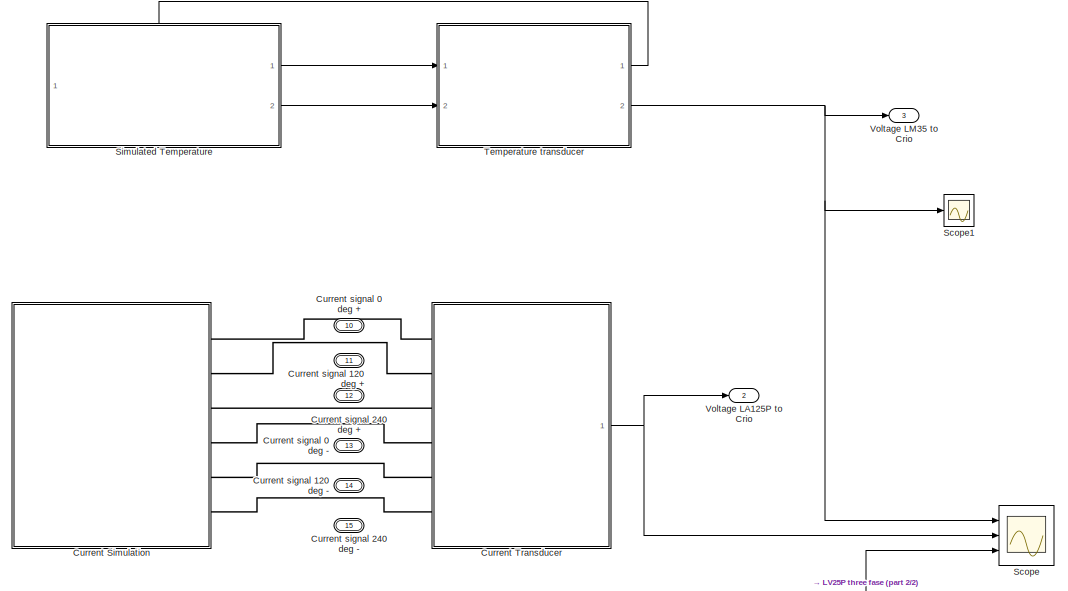
[diagram: root canvas - part 1/2, full width, top band]
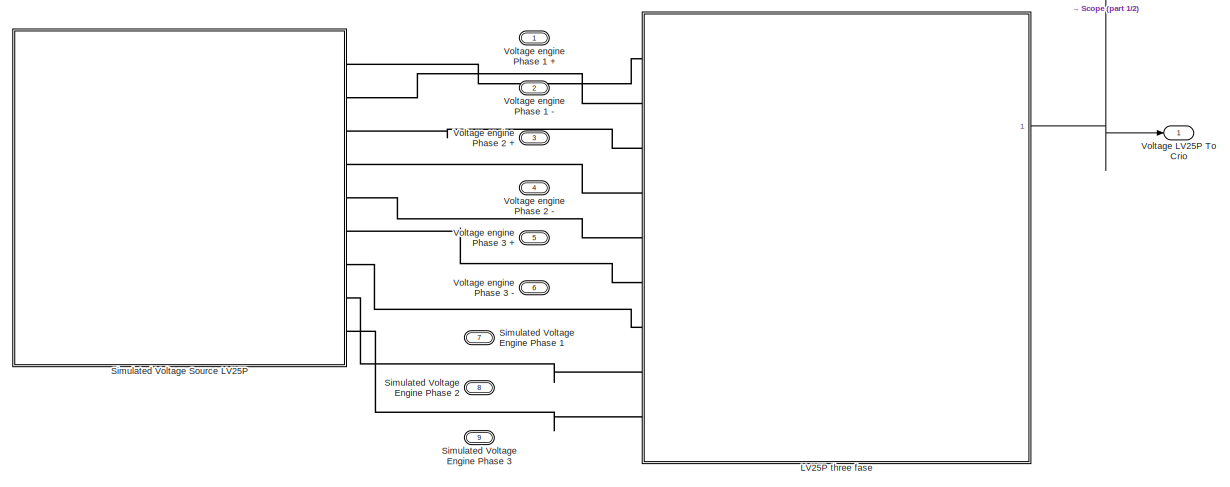
[diagram: root canvas - part 2/2, full width, bottom band]
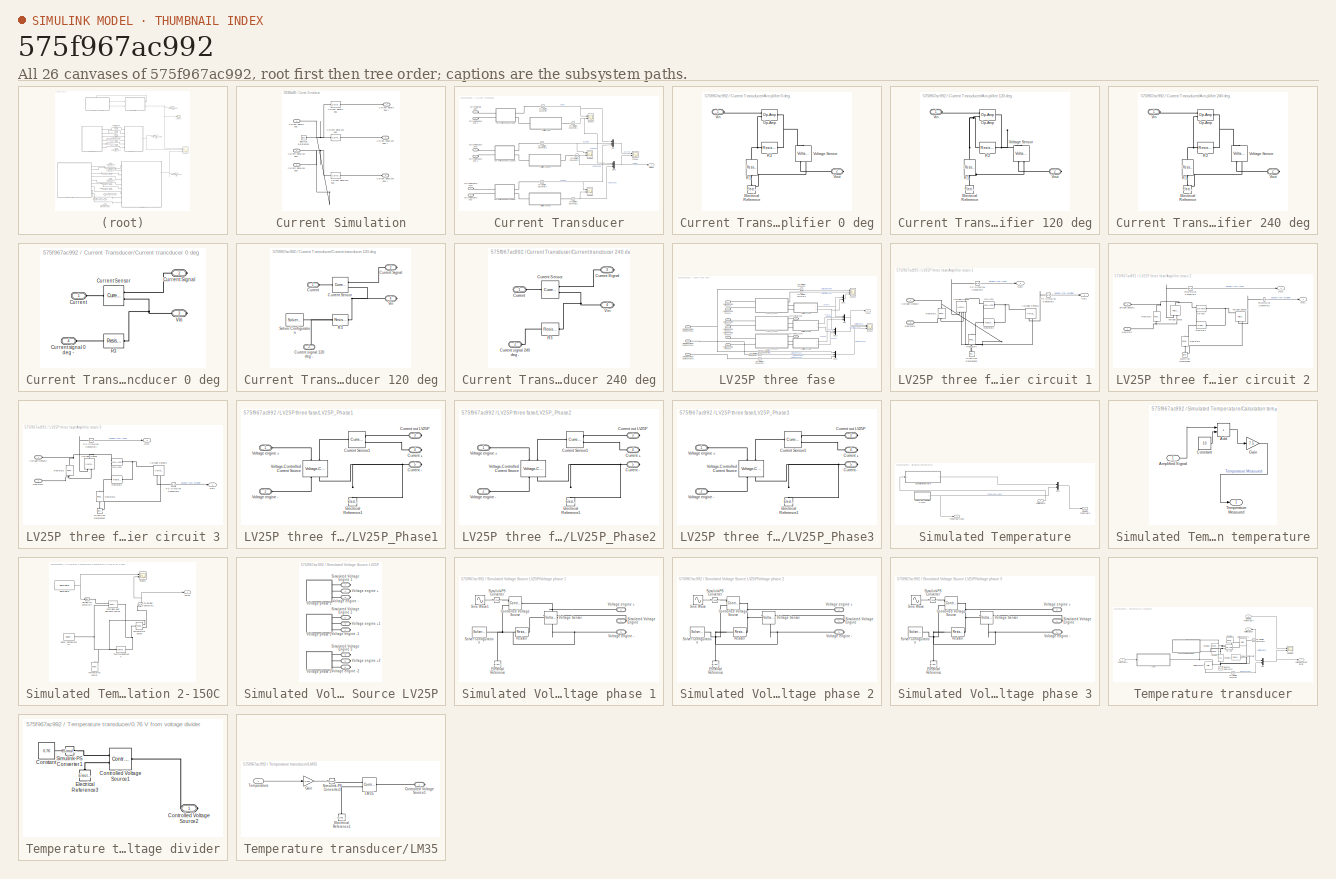
[diagram: thumbnail index - all 26 canvases of the model, root first then tree order]
MODEL slx_575f967ac992
KIND model
CONFIG AbsTol = auto
CONFIG EnableMultiTasking = off
CONFIG FixedStep = auto
CONFIG MaxStep = auto
CONFIG MinStep = auto
CONFIG RelTol = 1e-3
CONFIG SampleTimeConstraint = Unconstrained
CONFIG SolverName = VariableStepAuto
CONFIG StartTime = 0.0
CONFIG StopTime = 0.01
BLOCK [SubSystem] Current Simulation
  Ports = [0, 0, 0, 0, 0, 6]
  RequestExecContextInheritance = off
BLOCK [Reference] Current Simulation/Current signal 0 deg  REF=ee_lib/Sources/Current Source
  Ports = [0, 0, 0, 0, 0, 1, 1]
  SourceBlock = ee_lib/Sources/Current Source
  SourceProductBaseCode = PS
  SourceType = Current Source
BLOCK [PMIOPort] Current Simulation/Current signal 0 deg +
  Side = Left
BLOCK [PMIOPort] Current Simulation/Current signal 0 deg -
  Port = 4
  Side = Left
BLOCK [Reference] Current Simulation/Current signal 120 deg  REF=ee_lib/Sources/Current Source
  Ports = [0, 0, 0, 0, 0, 1, 1]
  SourceBlock = ee_lib/Sources/Current Source
  SourceProductBaseCode = PS
  SourceType = Current Source
BLOCK [PMIOPort] Current Simulation/Current signal 120 deg +
  Port = 2
  Side = Left
BLOCK [PMIOPort] Current Simulation/Current signal 120 deg -
  Port = 5
  Side = Left
BLOCK [Reference] Current Simulation/Current signal 240 deg  REF=ee_lib/Sources/Current Source
  Ports = [0, 0, 0, 0, 0, 1, 1]
  SourceBlock = ee_lib/Sources/Current Source
  SourceProductBaseCode = PS
  SourceType = Current Source
BLOCK [PMIOPort] Current Simulation/Current signal 240 deg +
  Port = 3
  Side = Left
BLOCK [PMIOPort] Current Simulation/Current signal 240 deg -
  Port = 6
  Side = Left
BLOCK [Reference] Current Simulation/Electrical Reference2  REF=fl_lib/Electrical/Electrical Elements/Electrical Reference
  Ports = [0, 0, 0, 0, 0, 1]
  SourceBlock = fl_lib/Electrical/Electrical Elements/Electrical Reference
  SourceProductBaseCode = SS
  SourceType = Electrical Reference
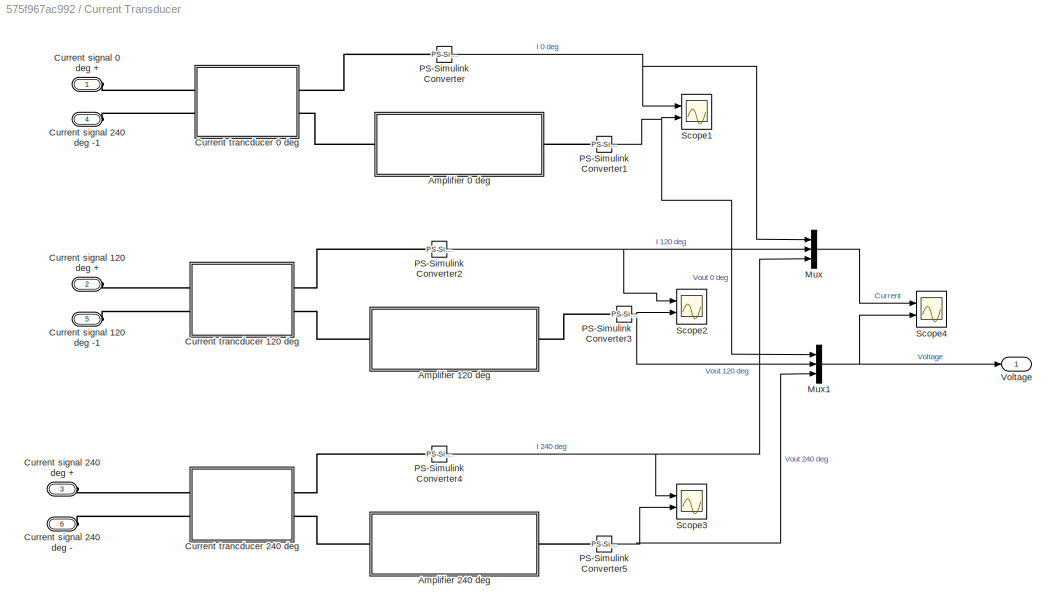
BLOCK [SubSystem] Current Transducer
  Ports = [0, 1, 0, 0, 0, 6]
  RequestExecContextInheritance = off
BLOCK [SubSystem] Current Transducer/Amplifier 0 deg
  Ports = [0, 0, 0, 0, 0, 1, 1]
  RequestExecContextInheritance = off
BLOCK [Reference] Current Transducer/Amplifier 0 deg/Electrical Reference  REF=fl_lib/Electrical/Electrical Elements/Electrical Reference
  NameLocation = right
  Ports = [0, 0, 0, 0, 0, 1]
  SourceBlock = fl_lib/Electrical/Electrical Elements/Electrical Reference
  SourceProductBaseCode = SS
  SourceType = Electrical Reference
BLOCK [Reference] Current Transducer/Amplifier 0 deg/Op-Amp  REF=fl_lib/Electrical/Electrical Elements/Op-Amp
  Ports = [0, 0, 0, 0, 0, 2, 1]
  SourceBlock = fl_lib/Electrical/Electrical Elements/Op-Amp
  SourceProductBaseCode = SS
  SourceType = Op-Amp
BLOCK [Reference] Current Transducer/Amplifier 0 deg/R1  REF=fl_lib/Electrical/Electrical Elements/Resistor
  NameLocation = left
  Ports = [0, 0, 0, 0, 0, 1, 1]
  SourceBlock = fl_lib/Electrical/Electrical Elements/Resistor
  SourceProductBaseCode = SS
  SourceType = Resistor
BLOCK [Reference] Current Transducer/Amplifier 0 deg/R2  REF=fl_lib/Electrical/Electrical Elements/Resistor
  Ports = [0, 0, 0, 0, 0, 1, 1]
  SourceBlock = fl_lib/Electrical/Electrical Elements/Resistor
  SourceProductBaseCode = SS
  SourceType = Resistor
BLOCK [PMIOPort] Current Transducer/Amplifier 0 deg/Vin
  Side = Left
BLOCK [Reference] Current Transducer/Amplifier 0 deg/Voltage Sensor  REF=fl_lib/Electrical/Electrical Sensors/Voltage Sensor
  NameLocation = left
  Ports = [0, 0, 0, 0, 0, 1, 2]
  SourceBlock = fl_lib/Electrical/Electrical Sensors/Voltage Sensor
  SourceProductBaseCode = SS
  SourceType = Voltage Sensor
BLOCK [PMIOPort] Current Transducer/Amplifier 0 deg/Vout
  Port = 2
  Side = Right
BLOCK [SubSystem] Current Transducer/Amplifier 120 deg
  Ports = [0, 0, 0, 0, 0, 1, 1]
  RequestExecContextInheritance = off
BLOCK [Reference] Current Transducer/Amplifier 120 deg/Electrical Reference  REF=fl_lib/Electrical/Electrical Elements/Electrical Reference
  NameLocation = right
  Ports = [0, 0, 0, 0, 0, 1]
  SourceBlock = fl_lib/Electrical/Electrical Elements/Electrical Reference
  SourceProductBaseCode = SS
  SourceType = Electrical Reference
BLOCK [Reference] Current Transducer/Amplifier 120 deg/Op-Amp  REF=fl_lib/Electrical/Electrical Elements/Op-Amp
  Ports = [0, 0, 0, 0, 0, 2, 1]
  SourceBlock = fl_lib/Electrical/Electrical Elements/Op-Amp
  SourceProductBaseCode = SS
  SourceType = Op-Amp
BLOCK [Reference] Current Transducer/Amplifier 120 deg/R1  REF=fl_lib/Electrical/Electrical Elements/Resistor
  NameLocation = left
  Ports = [0, 0, 0, 0, 0, 1, 1]
  SourceBlock = fl_lib/Electrical/Electrical Elements/Resistor
  SourceProductBaseCode = SS
  SourceType = Resistor
BLOCK [Reference] Current Transducer/Amplifier 120 deg/R2  REF=fl_lib/Electrical/Electrical Elements/Resistor
  Ports = [0, 0, 0, 0, 0, 1, 1]
  SourceBlock = fl_lib/Electrical/Electrical Elements/Resistor
  SourceProductBaseCode = SS
  SourceType = Resistor
BLOCK [PMIOPort] Current Transducer/Amplifier 120 deg/Vin
  Side = Left
BLOCK [Reference] Current Transducer/Amplifier 120 deg/Voltage Sensor  REF=fl_lib/Electrical/Electrical Sensors/Voltage Sensor
  NameLocation = left
  Ports = [0, 0, 0, 0, 0, 1, 2]
  SourceBlock = fl_lib/Electrical/Electrical Sensors/Voltage Sensor
  SourceProductBaseCode = SS
  SourceType = Voltage Sensor
BLOCK [PMIOPort] Current Transducer/Amplifier 120 deg/Vout
  Port = 2
  Side = Right
BLOCK [SubSystem] Current Transducer/Amplifier 240 deg
  Ports = [0, 0, 0, 0, 0, 1, 1]
  RequestExecContextInheritance = off
BLOCK [Reference] Current Transducer/Amplifier 240 deg/Electrical Reference  REF=fl_lib/Electrical/Electrical Elements/Electrical Reference
  NameLocation = right
  Ports = [0, 0, 0, 0, 0, 1]
  SourceBlock = fl_lib/Electrical/Electrical Elements/Electrical Reference
  SourceProductBaseCode = SS
  SourceType = Electrical Reference
BLOCK [Reference] Current Transducer/Amplifier 240 deg/Op-Amp  REF=fl_lib/Electrical/Electrical Elements/Op-Amp
  Ports = [0, 0, 0, 0, 0, 2, 1]
  SourceBlock = fl_lib/Electrical/Electrical Elements/Op-Amp
  SourceProductBaseCode = SS
  SourceType = Op-Amp
BLOCK [Reference] Current Transducer/Amplifier 240 deg/R1  REF=fl_lib/Electrical/Electrical Elements/Resistor
  NameLocation = left
  Ports = [0, 0, 0, 0, 0, 1, 1]
  SourceBlock = fl_lib/Electrical/Electrical Elements/Resistor
  SourceProductBaseCode = SS
  SourceType = Resistor
BLOCK [Reference] Current Transducer/Amplifier 240 deg/R2  REF=fl_lib/Electrical/Electrical Elements/Resistor
  Ports = [0, 0, 0, 0, 0, 1, 1]
  SourceBlock = fl_lib/Electrical/Electrical Elements/Resistor
  SourceProductBaseCode = SS
  SourceType = Resistor
BLOCK [PMIOPort] Current Transducer/Amplifier 240 deg/Vin
  Side = Left
BLOCK [Reference] Current Transducer/Amplifier 240 deg/Voltage Sensor  REF=fl_lib/Electrical/Electrical Sensors/Voltage Sensor
  NameLocation = left
  Ports = [0, 0, 0, 0, 0, 1, 2]
  SourceBlock = fl_lib/Electrical/Electrical Sensors/Voltage Sensor
  SourceProductBaseCode = SS
  SourceType = Voltage Sensor
BLOCK [PMIOPort] Current Transducer/Amplifier 240 deg/Vout
  Port = 2
  Side = Right
BLOCK [PMIOPort] Current Transducer/Current signal 0 deg +
  Side = Left
BLOCK [PMIOPort] Current Transducer/Current signal 120 deg +
  Port = 2
  Side = Left
BLOCK [PMIOPort] Current Transducer/Current signal 120 deg -1
  Port = 5
  Side = Left
BLOCK [PMIOPort] Current Transducer/Current signal 240 deg +
  Port = 3
  Side = Left
BLOCK [PMIOPort] Current Transducer/Current signal 240 deg -
  Port = 6
  Side = Left
BLOCK [PMIOPort] Current Transducer/Current signal 240 deg -1
  Port = 4
  Side = Left
BLOCK [SubSystem] Current Transducer/Current trancducer 0 deg
  Ports = [0, 0, 0, 0, 0, 2, 2]
  RequestExecContextInheritance = off
BLOCK [PMIOPort] Current Transducer/Current trancducer 0 deg/Current
  Side = Left
BLOCK [Reference] Current Transducer/Current trancducer 0 deg/Current Sensor  REF=fl_lib/Electrical/Electrical Sensors/Current Sensor
  Ports = [0, 0, 0, 0, 0, 1, 2]
  SourceBlock = fl_lib/Electrical/Electrical Sensors/Current Sensor
  SourceProductBaseCode = SS
  SourceType = Current Sensor
BLOCK [PMIOPort] Current Transducer/Current trancducer 0 deg/Current Signal
  Port = 2
  Side = Right
BLOCK [PMIOPort] Current Transducer/Current trancducer 0 deg/Current signal 0 deg -
  Port = 4
  Side = Left
BLOCK [Reference] Current Transducer/Current trancducer 0 deg/R3  REF=fl_lib/Electrical/Electrical Elements/Resistor
  NameLocation = top
  Ports = [0, 0, 0, 0, 0, 1, 1]
  SourceBlock = fl_lib/Electrical/Electrical Elements/Resistor
  SourceProductBaseCode = SS
  SourceType = Resistor
BLOCK [PMIOPort] Current Transducer/Current trancducer 0 deg/Vin
  Port = 3
  Side = Right
BLOCK [SubSystem] Current Transducer/Current trancducer 120 deg
  Ports = [0, 0, 0, 0, 0, 2, 2]
  RequestExecContextInheritance = off
BLOCK [PMIOPort] Current Transducer/Current trancducer 120 deg/Current
  Side = Left
BLOCK [Reference] Current Transducer/Current trancducer 120 deg/Current Sensor  REF=fl_lib/Electrical/Electrical Sensors/Current Sensor
  Ports = [0, 0, 0, 0, 0, 1, 2]
  SourceBlock = fl_lib/Electrical/Electrical Sensors/Current Sensor
  SourceProductBaseCode = SS
  SourceType = Current Sensor
BLOCK [PMIOPort] Current Transducer/Current trancducer 120 deg/Current Signal
  Port = 3
  Side = Right
BLOCK [PMIOPort] Current Transducer/Current trancducer 120 deg/Current signal 120 deg -
  Port = 2
  Side = Left
BLOCK [Reference] Current Transducer/Current trancducer 120 deg/R3  REF=fl_lib/Electrical/Electrical Elements/Resistor
  NameLocation = top
  Ports = [0, 0, 0, 0, 0, 1, 1]
  SourceBlock = fl_lib/Electrical/Electrical Elements/Resistor
  SourceProductBaseCode = SS
  SourceType = Resistor
BLOCK [Reference] Current Transducer/Current trancducer 120 deg/Solver Configuration  REF=nesl_utility/Solver
Configuration
  Ports = [0, 0, 0, 0, 0, 0, 1]
  SourceBlock = nesl_utility/Solver\nConfiguration
  SourceProductBaseCode = SS
  SourceType = Solver\nConfiguration
BLOCK [PMIOPort] Current Transducer/Current trancducer 120 deg/Vin
  Port = 4
  Side = Right
BLOCK [SubSystem] Current Transducer/Current trancducer 240 deg
  Ports = [0, 0, 0, 0, 0, 2, 2]
  RequestExecContextInheritance = off
BLOCK [PMIOPort] Current Transducer/Current trancducer 240 deg/Current
  Side = Left
BLOCK [Reference] Current Transducer/Current trancducer 240 deg/Current Sensor  REF=fl_lib/Electrical/Electrical Sensors/Current Sensor
  Ports = [0, 0, 0, 0, 0, 1, 2]
  SourceBlock = fl_lib/Electrical/Electrical Sensors/Current Sensor
  SourceProductBaseCode = SS
  SourceType = Current Sensor
BLOCK [PMIOPort] Current Transducer/Current trancducer 240 deg/Current Signal
  Port = 3
  Side = Right
BLOCK [PMIOPort] Current Transducer/Current trancducer 240 deg/Current signal 240 deg -
  Port = 2
  Side = Left
BLOCK [Reference] Current Transducer/Current trancducer 240 deg/R3  REF=fl_lib/Electrical/Electrical Elements/Resistor
  NameLocation = top
  Ports = [0, 0, 0, 0, 0, 1, 1]
  SourceBlock = fl_lib/Electrical/Electrical Elements/Resistor
  SourceProductBaseCode = SS
  SourceType = Resistor
BLOCK [PMIOPort] Current Transducer/Current trancducer 240 deg/Vin
  Port = 4
  Side = Right
BLOCK [Mux] Current Transducer/Mux
  DisplayOption = bar
  Inputs = 3
  Ports = [3, 1]
BLOCK [Mux] Current Transducer/Mux1
  DisplayOption = bar
  Inputs = 3
  Ports = [3, 1]
BLOCK [Reference] Current Transducer/PS-Simulink Converter  REF=nesl_utility/PS-Simulink
Converter
  Ports = [0, 1, 0, 0, 0, 1]
  SourceBlock = nesl_utility/PS-Simulink\nConverter
  SourceProductBaseCode = SS
  SourceType = PS-Simulink\nConverter
BLOCK [Reference] Current Transducer/PS-Simulink Converter1  REF=nesl_utility/PS-Simulink
Converter
  Ports = [0, 1, 0, 0, 0, 1]
  SourceBlock = nesl_utility/PS-Simulink\nConverter
  SourceProductBaseCode = SS
  SourceType = PS-Simulink\nConverter
BLOCK [Reference] Current Transducer/PS-Simulink Converter2  REF=nesl_utility/PS-Simulink
Converter
  Ports = [0, 1, 0, 0, 0, 1]
  SourceBlock = nesl_utility/PS-Simulink\nConverter
  SourceProductBaseCode = SS
  SourceType = PS-Simulink\nConverter
BLOCK [Reference] Current Transducer/PS-Simulink Converter3  REF=nesl_utility/PS-Simulink
Converter
  Ports = [0, 1, 0, 0, 0, 1]
  SourceBlock = nesl_utility/PS-Simulink\nConverter
  SourceProductBaseCode = SS
  SourceType = PS-Simulink\nConverter
BLOCK [Reference] Current Transducer/PS-Simulink Converter4  REF=nesl_utility/PS-Simulink
Converter
  Ports = [0, 1, 0, 0, 0, 1]
  SourceBlock = nesl_utility/PS-Simulink\nConverter
  SourceProductBaseCode = SS
  SourceType = PS-Simulink\nConverter
BLOCK [Reference] Current Transducer/PS-Simulink Converter5  REF=nesl_utility/PS-Simulink
Converter
  Ports = [0, 1, 0, 0, 0, 1]
  SourceBlock = nesl_utility/PS-Simulink\nConverter
  SourceProductBaseCode = SS
  SourceType = PS-Simulink\nConverter
BLOCK [Scope] Current Transducer/Scope1
  Floating = off
  NumInputPorts = 2
  Ports = [2]
  ScopeSpecificationString = Simulink.scopes.TimeScopeBlockCfg('CurrentConfiguration', extmgr.ConfigurationSet(extmgr.Configuration('Core','General UI',true),extmgr.Configuration('Core','Source UI',true),extmgr.Configuration('Sources','WiredSimulink',true,'DataLoggingVariableName','ScopeData1'),extmgr.Configuration('Visuals','Time Domain',true,'SerializedDisplays',{struct('MinYLimReal','-0.24989','MaxYLimReal','0.24986','YLab...<+2095ch>
BLOCK [Scope] Current Transducer/Scope2
  Floating = off
  NumInputPorts = 2
  Ports = [2]
  ScopeSpecificationString = Simulink.scopes.TimeScopeBlockCfg('CurrentConfiguration', extmgr.ConfigurationSet(extmgr.Configuration('Core','General UI',true),extmgr.Configuration('Core','Source UI',true),extmgr.Configuration('Sources','WiredSimulink',true,'DataLoggingVariableName','ScopeData1'),extmgr.Configuration('Visuals','Time Domain',true,'SerializedDisplays',{struct('MinYLimReal','-0.24989','MaxYLimReal','0.24986','YLab...<+2095ch>
BLOCK [Scope] Current Transducer/Scope3
  Floating = off
  NumInputPorts = 2
  Ports = [2]
  ScopeSpecificationString = Simulink.scopes.TimeScopeBlockCfg('CurrentConfiguration', extmgr.ConfigurationSet(extmgr.Configuration('Core','General UI',true),extmgr.Configuration('Core','Source UI',true),extmgr.Configuration('Sources','WiredSimulink',true,'DataLoggingVariableName','ScopeData2'),extmgr.Configuration('Visuals','Time Domain',true,'SerializedDisplays',{struct('MinYLimReal','-0.24989','MaxYLimReal','0.24986','YLab...<+2095ch>
BLOCK [Scope] Current Transducer/Scope4
  Floating = off
  NumInputPorts = 2
  Ports = [2]
  ScopeSpecificationString = Simulink.scopes.TimeScopeBlockCfg('CurrentConfiguration', extmgr.ConfigurationSet(extmgr.Configuration('Core','General UI',true),extmgr.Configuration('Core','Source UI',true),extmgr.Configuration('Sources','WiredSimulink',true,'DataLoggingVariableName','ScopeData3'),extmgr.Configuration('Visuals','Time Domain',true,'SerializedDisplays',{struct('MinYLimReal','-0.24997','MaxYLimReal','0.24999','YLab...<+2324ch>
BLOCK [Outport] Current Transducer/Voltage
BLOCK [PMIOPort] Current signal 0 deg +
  Port = 10
  Side = Right
BLOCK [PMIOPort] Current signal 0 deg -
  Port = 13
  Side = Right
BLOCK [PMIOPort] Current signal 120 deg +
  Port = 11
  Side = Right
BLOCK [PMIOPort] Current signal 120 deg -
  Port = 14
  Side = Right
BLOCK [PMIOPort] Current signal 240 deg +
  Port = 12
  Side = Right
BLOCK [PMIOPort] Current signal 240 deg -
  Port = 15
  Side = Right
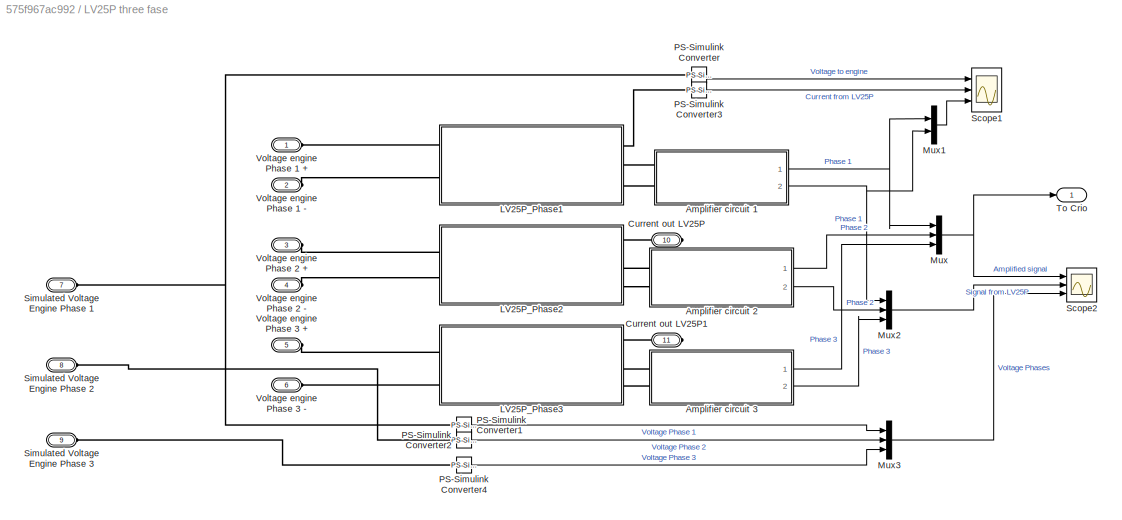
BLOCK [SubSystem] LV25P three fase
  Ports = [0, 1, 0, 0, 0, 9, 2]
  RequestExecContextInheritance = off
BLOCK [SubSystem] LV25P three fase/Amplifier circuit 1
  Ports = [0, 2, 0, 0, 0, 2]
  RequestExecContextInheritance = off
BLOCK [Reference] LV25P three fase/Amplifier circuit 1/Electrical Reference2  REF=fl_lib/Electrical/Electrical Elements/Electrical Reference
  NameLocation = right
  Ports = [0, 0, 0, 0, 0, 1]
  SourceBlock = fl_lib/Electrical/Electrical Elements/Electrical Reference
  SourceProductBaseCode = SS
  SourceType = Electrical Reference
BLOCK [Reference] LV25P three fase/Amplifier circuit 1/Op-Amp  REF=fl_lib/Electrical/Electrical Elements/Op-Amp
  Ports = [0, 0, 0, 0, 0, 2, 1]
  SourceBlock = fl_lib/Electrical/Electrical Elements/Op-Amp
  SourceProductBaseCode = SS
  SourceType = Op-Amp
BLOCK [Outport] LV25P three fase/Amplifier circuit 1/Out1
BLOCK [Outport] LV25P three fase/Amplifier circuit 1/Out2
  Port = 2
BLOCK [Reference] LV25P three fase/Amplifier circuit 1/PS-Simulink Converter1  REF=nesl_utility/PS-Simulink
Converter
  Ports = [0, 1, 0, 0, 0, 1]
  SourceBlock = nesl_utility/PS-Simulink\nConverter
  SourceProductBaseCode = SS
  SourceType = PS-Simulink\nConverter
BLOCK [Reference] LV25P three fase/Amplifier circuit 1/PS-Simulink Converter2  REF=nesl_utility/PS-Simulink
Converter
  Ports = [0, 1, 0, 0, 0, 1]
  SourceBlock = nesl_utility/PS-Simulink\nConverter
  SourceProductBaseCode = SS
  SourceType = PS-Simulink\nConverter
BLOCK [Reference] LV25P three fase/Amplifier circuit 1/Resistor1  REF=fl_lib/Electrical/Electrical Elements/Resistor
  NameLocation = left
  Ports = [0, 0, 0, 0, 0, 1, 1]
  SourceBlock = fl_lib/Electrical/Electrical Elements/Resistor
  SourceProductBaseCode = SS
  SourceType = Resistor
BLOCK [Reference] LV25P three fase/Amplifier circuit 1/Resistor2  REF=fl_lib/Electrical/Electrical Elements/Resistor
  Ports = [0, 0, 0, 0, 0, 1, 1]
  SourceBlock = fl_lib/Electrical/Electrical Elements/Resistor
  SourceProductBaseCode = SS
  SourceType = Resistor
BLOCK [Reference] LV25P three fase/Amplifier circuit 1/Resistor3  REF=fl_lib/Electrical/Electrical Elements/Resistor
  NameLocation = left
  Ports = [0, 0, 0, 0, 0, 1, 1]
  SourceBlock = fl_lib/Electrical/Electrical Elements/Resistor
  SourceProductBaseCode = SS
  SourceType = Resistor
BLOCK [PMIOPort] LV25P three fase/Amplifier circuit 1/Resistor4
  Port = 2
  Side = Left
BLOCK [Reference] LV25P three fase/Amplifier circuit 1/Voltage Sensor  REF=fl_lib/Electrical/Electrical Sensors/Voltage Sensor
  NameLocation = right
  Ports = [0, 0, 0, 0, 0, 1, 2]
  SourceBlock = fl_lib/Electrical/Electrical Sensors/Voltage Sensor
  SourceProductBaseCode = SS
  SourceType = Voltage Sensor
BLOCK [Reference] LV25P three fase/Amplifier circuit 1/Voltage Sensor1  REF=fl_lib/Electrical/Electrical Sensors/Voltage Sensor
  NameLocation = right
  Ports = [0, 0, 0, 0, 0, 1, 2]
  SourceBlock = fl_lib/Electrical/Electrical Sensors/Voltage Sensor
  SourceProductBaseCode = SS
  SourceType = Voltage Sensor
BLOCK [PMIOPort] LV25P three fase/Amplifier circuit 1/Voltage Sensor2
  Side = Left
BLOCK [SubSystem] LV25P three fase/Amplifier circuit 2
  Ports = [0, 2, 0, 0, 0, 2]
  RequestExecContextInheritance = off
BLOCK [Reference] LV25P three fase/Amplifier circuit 2/Electrical Reference2  REF=fl_lib/Electrical/Electrical Elements/Electrical Reference
  NameLocation = right
  Ports = [0, 0, 0, 0, 0, 1]
  SourceBlock = fl_lib/Electrical/Electrical Elements/Electrical Reference
  SourceProductBaseCode = SS
  SourceType = Electrical Reference
BLOCK [Reference] LV25P three fase/Amplifier circuit 2/Op-Amp  REF=fl_lib/Electrical/Electrical Elements/Op-Amp
  Ports = [0, 0, 0, 0, 0, 2, 1]
  SourceBlock = fl_lib/Electrical/Electrical Elements/Op-Amp
  SourceProductBaseCode = SS
  SourceType = Op-Amp
BLOCK [Outport] LV25P three fase/Amplifier circuit 2/Out1
BLOCK [Outport] LV25P three fase/Amplifier circuit 2/Out2
  Port = 2
BLOCK [Reference] LV25P three fase/Amplifier circuit 2/PS-Simulink Converter1  REF=nesl_utility/PS-Simulink
Converter
  Ports = [0, 1, 0, 0, 0, 1]
  SourceBlock = nesl_utility/PS-Simulink\nConverter
  SourceProductBaseCode = SS
  SourceType = PS-Simulink\nConverter
BLOCK [Reference] LV25P three fase/Amplifier circuit 2/PS-Simulink Converter2  REF=nesl_utility/PS-Simulink
Converter
  Ports = [0, 1, 0, 0, 0, 1]
  SourceBlock = nesl_utility/PS-Simulink\nConverter
  SourceProductBaseCode = SS
  SourceType = PS-Simulink\nConverter
BLOCK [Reference] LV25P three fase/Amplifier circuit 2/Resistor1  REF=fl_lib/Electrical/Electrical Elements/Resistor
  NameLocation = left
  Ports = [0, 0, 0, 0, 0, 1, 1]
  SourceBlock = fl_lib/Electrical/Electrical Elements/Resistor
  SourceProductBaseCode = SS
  SourceType = Resistor
BLOCK [Reference] LV25P three fase/Amplifier circuit 2/Resistor2  REF=fl_lib/Electrical/Electrical Elements/Resistor
  Ports = [0, 0, 0, 0, 0, 1, 1]
  SourceBlock = fl_lib/Electrical/Electrical Elements/Resistor
  SourceProductBaseCode = SS
  SourceType = Resistor
BLOCK [Reference] LV25P three fase/Amplifier circuit 2/Resistor3  REF=fl_lib/Electrical/Electrical Elements/Resistor
  NameLocation = left
  Ports = [0, 0, 0, 0, 0, 1, 1]
  SourceBlock = fl_lib/Electrical/Electrical Elements/Resistor
  SourceProductBaseCode = SS
  SourceType = Resistor
BLOCK [PMIOPort] LV25P three fase/Amplifier circuit 2/Resistor4
  Port = 2
  Side = Left
BLOCK [Reference] LV25P three fase/Amplifier circuit 2/Voltage Sensor  REF=fl_lib/Electrical/Electrical Sensors/Voltage Sensor
  NameLocation = right
  Ports = [0, 0, 0, 0, 0, 1, 2]
  SourceBlock = fl_lib/Electrical/Electrical Sensors/Voltage Sensor
  SourceProductBaseCode = SS
  SourceType = Voltage Sensor
BLOCK [Reference] LV25P three fase/Amplifier circuit 2/Voltage Sensor1  REF=fl_lib/Electrical/Electrical Sensors/Voltage Sensor
  NameLocation = right
  Ports = [0, 0, 0, 0, 0, 1, 2]
  SourceBlock = fl_lib/Electrical/Electrical Sensors/Voltage Sensor
  SourceProductBaseCode = SS
  SourceType = Voltage Sensor
BLOCK [PMIOPort] LV25P three fase/Amplifier circuit 2/Voltage Sensor2
  Side = Left
BLOCK [SubSystem] LV25P three fase/Amplifier circuit 3
  Ports = [0, 2, 0, 0, 0, 2]
  RequestExecContextInheritance = off
BLOCK [Reference] LV25P three fase/Amplifier circuit 3/Electrical Reference2  REF=fl_lib/Electrical/Electrical Elements/Electrical Reference
  NameLocation = right
  Ports = [0, 0, 0, 0, 0, 1]
  SourceBlock = fl_lib/Electrical/Electrical Elements/Electrical Reference
  SourceProductBaseCode = SS
  SourceType = Electrical Reference
BLOCK [Reference] LV25P three fase/Amplifier circuit 3/Op-Amp  REF=fl_lib/Electrical/Electrical Elements/Op-Amp
  Ports = [0, 0, 0, 0, 0, 2, 1]
  SourceBlock = fl_lib/Electrical/Electrical Elements/Op-Amp
  SourceProductBaseCode = SS
  SourceType = Op-Amp
BLOCK [Outport] LV25P three fase/Amplifier circuit 3/Out1
BLOCK [Outport] LV25P three fase/Amplifier circuit 3/Out2
  Port = 2
BLOCK [Reference] LV25P three fase/Amplifier circuit 3/PS-Simulink Converter1  REF=nesl_utility/PS-Simulink
Converter
  Ports = [0, 1, 0, 0, 0, 1]
  SourceBlock = nesl_utility/PS-Simulink\nConverter
  SourceProductBaseCode = SS
  SourceType = PS-Simulink\nConverter
BLOCK [Reference] LV25P three fase/Amplifier circuit 3/PS-Simulink Converter2  REF=nesl_utility/PS-Simulink
Converter
  Ports = [0, 1, 0, 0, 0, 1]
  SourceBlock = nesl_utility/PS-Simulink\nConverter
  SourceProductBaseCode = SS
  SourceType = PS-Simulink\nConverter
BLOCK [Reference] LV25P three fase/Amplifier circuit 3/Resistor1  REF=fl_lib/Electrical/Electrical Elements/Resistor
  NameLocation = left
  Ports = [0, 0, 0, 0, 0, 1, 1]
  SourceBlock = fl_lib/Electrical/Electrical Elements/Resistor
  SourceProductBaseCode = SS
  SourceType = Resistor
BLOCK [Reference] LV25P three fase/Amplifier circuit 3/Resistor2  REF=fl_lib/Electrical/Electrical Elements/Resistor
  Ports = [0, 0, 0, 0, 0, 1, 1]
  SourceBlock = fl_lib/Electrical/Electrical Elements/Resistor
  SourceProductBaseCode = SS
  SourceType = Resistor
BLOCK [Reference] LV25P three fase/Amplifier circuit 3/Resistor3  REF=fl_lib/Electrical/Electrical Elements/Resistor
  NameLocation = left
  Ports = [0, 0, 0, 0, 0, 1, 1]
  SourceBlock = fl_lib/Electrical/Electrical Elements/Resistor
  SourceProductBaseCode = SS
  SourceType = Resistor
BLOCK [PMIOPort] LV25P three fase/Amplifier circuit 3/Resistor4
  Port = 2
  Side = Left
BLOCK [Reference] LV25P three fase/Amplifier circuit 3/Voltage Sensor  REF=fl_lib/Electrical/Electrical Sensors/Voltage Sensor
  NameLocation = right
  Ports = [0, 0, 0, 0, 0, 1, 2]
  SourceBlock = fl_lib/Electrical/Electrical Sensors/Voltage Sensor
  SourceProductBaseCode = SS
  SourceType = Voltage Sensor
BLOCK [Reference] LV25P three fase/Amplifier circuit 3/Voltage Sensor1  REF=fl_lib/Electrical/Electrical Sensors/Voltage Sensor
  NameLocation = right
  Ports = [0, 0, 0, 0, 0, 1, 2]
  SourceBlock = fl_lib/Electrical/Electrical Sensors/Voltage Sensor
  SourceProductBaseCode = SS
  SourceType = Voltage Sensor
BLOCK [PMIOPort] LV25P three fase/Amplifier circuit 3/Voltage Sensor2
  Side = Left
BLOCK [PMIOPort] LV25P three fase/Current out LV25P
  Port = 10
  Side = Right
BLOCK [PMIOPort] LV25P three fase/Current out LV25P1
  Port = 11
  Side = Right
BLOCK [SubSystem] LV25P three fase/LV25P_Phase1
  Ports = [0, 0, 0, 0, 0, 2, 3]
  RequestExecContextInheritance = off
BLOCK [PMIOPort] LV25P three fase/LV25P_Phase1/Current +
  Port = 4
  Side = Right
BLOCK [PMIOPort] LV25P three fase/LV25P_Phase1/Current -
  Port = 5
  Side = Right
BLOCK [Reference] LV25P three fase/LV25P_Phase1/Current Sensor1  REF=fl_lib/Electrical/Electrical Sensors/Current Sensor
  Ports = [0, 0, 0, 0, 0, 1, 2]
  SourceBlock = fl_lib/Electrical/Electrical Sensors/Current Sensor
  SourceProductBaseCode = SS
  SourceType = Current Sensor
BLOCK [PMIOPort] LV25P three fase/LV25P_Phase1/Current out LV25P
  Port = 3
  Side = Right
BLOCK [Reference] LV25P three fase/LV25P_Phase1/Electrical Reference1  REF=fl_lib/Electrical/Electrical Elements/Electrical Reference
  NameLocation = right
  Ports = [0, 0, 0, 0, 0, 1]
  SourceBlock = fl_lib/Electrical/Electrical Elements/Electrical Reference
  SourceProductBaseCode = SS
  SourceType = Electrical Reference
BLOCK [PMIOPort] LV25P three fase/LV25P_Phase1/Voltage engine +
  Side = Left
BLOCK [PMIOPort] LV25P three fase/LV25P_Phase1/Voltage engine -
  Port = 2
  Side = Left
BLOCK [Reference] LV25P three fase/LV25P_Phase1/Voltage-Controlled Current Source  REF=fl_lib/Electrical/Electrical Sources/Voltage-Controlled
Current Source
  NameLocation = right
  Ports = [0, 0, 0, 0, 0, 2, 2]
  SourceBlock = fl_lib/Electrical/Electrical Sources/Voltage-Controlled\nCurrent Source
  SourceProductBaseCode = SS
  SourceType = Voltage-Controlled\nCurrent Source
BLOCK [SubSystem] LV25P three fase/LV25P_Phase2
  Ports = [0, 0, 0, 0, 0, 2, 3]
  RequestExecContextInheritance = off
BLOCK [PMIOPort] LV25P three fase/LV25P_Phase2/Current +
  Port = 4
  Side = Right
BLOCK [PMIOPort] LV25P three fase/LV25P_Phase2/Current -
  Port = 5
  Side = Right
BLOCK [Reference] LV25P three fase/LV25P_Phase2/Current Sensor1  REF=fl_lib/Electrical/Electrical Sensors/Current Sensor
  Ports = [0, 0, 0, 0, 0, 1, 2]
  SourceBlock = fl_lib/Electrical/Electrical Sensors/Current Sensor
  SourceProductBaseCode = SS
  SourceType = Current Sensor
BLOCK [PMIOPort] LV25P three fase/LV25P_Phase2/Current out LV25P
  Port = 3
  Side = Right
BLOCK [Reference] LV25P three fase/LV25P_Phase2/Electrical Reference1  REF=fl_lib/Electrical/Electrical Elements/Electrical Reference
  NameLocation = right
  Ports = [0, 0, 0, 0, 0, 1]
  SourceBlock = fl_lib/Electrical/Electrical Elements/Electrical Reference
  SourceProductBaseCode = SS
  SourceType = Electrical Reference
BLOCK [PMIOPort] LV25P three fase/LV25P_Phase2/Voltage engine +
  Side = Left
BLOCK [PMIOPort] LV25P three fase/LV25P_Phase2/Voltage engine -
  Port = 2
  Side = Left
BLOCK [Reference] LV25P three fase/LV25P_Phase2/Voltage-Controlled Current Source  REF=fl_lib/Electrical/Electrical Sources/Voltage-Controlled
Current Source
  NameLocation = right
  Ports = [0, 0, 0, 0, 0, 2, 2]
  SourceBlock = fl_lib/Electrical/Electrical Sources/Voltage-Controlled\nCurrent Source
  SourceProductBaseCode = SS
  SourceType = Voltage-Controlled\nCurrent Source
BLOCK [SubSystem] LV25P three fase/LV25P_Phase3
  Ports = [0, 0, 0, 0, 0, 2, 3]
  RequestExecContextInheritance = off
BLOCK [PMIOPort] LV25P three fase/LV25P_Phase3/Current +
  Port = 4
  Side = Right
BLOCK [PMIOPort] LV25P three fase/LV25P_Phase3/Current -
  Port = 5
  Side = Right
BLOCK [Reference] LV25P three fase/LV25P_Phase3/Current Sensor1  REF=fl_lib/Electrical/Electrical Sensors/Current Sensor
  Ports = [0, 0, 0, 0, 0, 1, 2]
  SourceBlock = fl_lib/Electrical/Electrical Sensors/Current Sensor
  SourceProductBaseCode = SS
  SourceType = Current Sensor
BLOCK [PMIOPort] LV25P three fase/LV25P_Phase3/Current out LV25P
  Port = 3
  Side = Right
BLOCK [Reference] LV25P three fase/LV25P_Phase3/Electrical Reference1  REF=fl_lib/Electrical/Electrical Elements/Electrical Reference
  NameLocation = right
  Ports = [0, 0, 0, 0, 0, 1]
  SourceBlock = fl_lib/Electrical/Electrical Elements/Electrical Reference
  SourceProductBaseCode = SS
  SourceType = Electrical Reference
BLOCK [PMIOPort] LV25P three fase/LV25P_Phase3/Voltage engine +
  Side = Left
BLOCK [PMIOPort] LV25P three fase/LV25P_Phase3/Voltage engine -
  Port = 2
  Side = Left
BLOCK [Reference] LV25P three fase/LV25P_Phase3/Voltage-Controlled Current Source  REF=fl_lib/Electrical/Electrical Sources/Voltage-Controlled
Current Source
  NameLocation = right
  Ports = [0, 0, 0, 0, 0, 2, 2]
  SourceBlock = fl_lib/Electrical/Electrical Sources/Voltage-Controlled\nCurrent Source
  SourceProductBaseCode = SS
  SourceType = Voltage-Controlled\nCurrent Source
BLOCK [Mux] LV25P three fase/Mux
  DisplayOption = bar
  Inputs = 3
  Ports = [3, 1]
BLOCK [Mux] LV25P three fase/Mux1
  DisplayOption = bar
  Inputs = 2
  Ports = [2, 1]
BLOCK [Mux] LV25P three fase/Mux2
  DisplayOption = bar
  Inputs = 3
  Ports = [3, 1]
BLOCK [Mux] LV25P three fase/Mux3
  DisplayOption = bar
  Inputs = 3
  Ports = [3, 1]
BLOCK [Reference] LV25P three fase/PS-Simulink Converter  REF=nesl_utility/PS-Simulink
Converter
  Ports = [0, 1, 0, 0, 0, 1]
  SourceBlock = nesl_utility/PS-Simulink\nConverter
  SourceProductBaseCode = SS
  SourceType = PS-Simulink\nConverter
BLOCK [Reference] LV25P three fase/PS-Simulink Converter1  REF=nesl_utility/PS-Simulink
Converter
  Ports = [0, 1, 0, 0, 0, 1]
  SourceBlock = nesl_utility/PS-Simulink\nConverter
  SourceProductBaseCode = SS
  SourceType = PS-Simulink\nConverter
BLOCK [Reference] LV25P three fase/PS-Simulink Converter2  REF=nesl_utility/PS-Simulink
Converter
  Ports = [0, 1, 0, 0, 0, 1]
  SourceBlock = nesl_utility/PS-Simulink\nConverter
  SourceProductBaseCode = SS
  SourceType = PS-Simulink\nConverter
BLOCK [Reference] LV25P three fase/PS-Simulink Converter3  REF=nesl_utility/PS-Simulink
Converter
  Ports = [0, 1, 0, 0, 0, 1]
  SourceBlock = nesl_utility/PS-Simulink\nConverter
  SourceProductBaseCode = SS
  SourceType = PS-Simulink\nConverter
BLOCK [Reference] LV25P three fase/PS-Simulink Converter4  REF=nesl_utility/PS-Simulink
Converter
  Ports = [0, 1, 0, 0, 0, 1]
  SourceBlock = nesl_utility/PS-Simulink\nConverter
  SourceProductBaseCode = SS
  SourceType = PS-Simulink\nConverter
BLOCK [Scope] LV25P three fase/Scope1
  Floating = off
  NumInputPorts = 3
  Ports = [3]
  ScopeSpecificationString = Simulink.scopes.TimeScopeBlockCfg('CurrentConfiguration', extmgr.ConfigurationSet(extmgr.Configuration('Core','General UI',true),extmgr.Configuration('Core','Source UI',true),extmgr.Configuration('Sources','WiredSimulink',true,'DataLoggingVariableName','ScopeData2'),extmgr.Configuration('Visuals','Time Domain',true,'SerializedDisplays',{struct('MinYLimReal','-249.55366','MaxYLimReal','249.85565','...<+2861ch>
BLOCK [Scope] LV25P three fase/Scope2
  Floating = off
  NumInputPorts = 3
  Ports = [3]
  ScopeSpecificationString = Simulink.scopes.TimeScopeBlockCfg('CurrentConfiguration', extmgr.ConfigurationSet(extmgr.Configuration('Core','General UI',true),extmgr.Configuration('Core','Source UI',true),extmgr.Configuration('Sources','WiredSimulink',true,'DataLoggingVariableName','ScopeData3'),extmgr.Configuration('Visuals','Time Domain',true,'SerializedDisplays',{struct('MinYLimReal','-12.49893','MaxYLimReal','12.49514','YL...<+3252ch>
BLOCK [PMIOPort] LV25P three fase/Simulated Voltage Engine Phase 1
  Port = 7
  Side = Left
BLOCK [PMIOPort] LV25P three fase/Simulated Voltage Engine Phase 2
  Port = 8
  Side = Left
BLOCK [PMIOPort] LV25P three fase/Simulated Voltage Engine Phase 3
  Port = 9
  Side = Left
BLOCK [Outport] LV25P three fase/To Crio
BLOCK [PMIOPort] LV25P three fase/Voltage engine Phase 1 +
  Side = Left
BLOCK [PMIOPort] LV25P three fase/Voltage engine Phase 1 -
  Port = 2
  Side = Left
BLOCK [PMIOPort] LV25P three fase/Voltage engine Phase 2 +
  Port = 3
  Side = Left
BLOCK [PMIOPort] LV25P three fase/Voltage engine Phase 2 -
  Port = 4
  Side = Left
BLOCK [PMIOPort] LV25P three fase/Voltage engine Phase 3 +
  Port = 5
  Side = Left
BLOCK [PMIOPort] LV25P three fase/Voltage engine Phase 3 -
  Port = 6
  Side = Left
BLOCK [Scope] Scope
  Floating = off
  NumInputPorts = 3
  Ports = [3]
  ScopeSpecificationString = Simulink.scopes.TimeScopeBlockCfg('CurrentConfiguration', extmgr.ConfigurationSet(extmgr.Configuration('Core','General UI',true),extmgr.Configuration('Core','Source UI',true),extmgr.Configuration('Sources','WiredSimulink',true,'DataLoggingVariableName','ScopeData1'),extmgr.Configuration('Visuals','Time Domain',true,'SerializedDisplays',{struct('MinYLimReal','-11.05671','MaxYLimReal','1.25417','YLa...<+3562ch>
BLOCK [Scope] Scope1
  Floating = off
  NumInputPorts = 1
  Ports = [1]
  ScopeSpecificationString = Simulink.scopes.TimeScopeBlockCfg('CurrentConfiguration', extmgr.ConfigurationSet(extmgr.Configuration('Core','General UI',true),extmgr.Configuration('Core','Source UI',true),extmgr.Configuration('Sources','WiredSimulink',true,'DataLoggingVariableName','ScopeData5'),extmgr.Configuration('Visuals','Time Domain',true,'SerializedDisplays',{struct('MinYLimReal','-11.05671','MaxYLimReal','1.25417','YLa...<+1447ch>
BLOCK [SubSystem] Simulated Temperature
  PortSchema = {"entries":[{"content":{"sides":[{"content":{"connectorIds":[]},"type":"ConnectorPlacement.EquallySpacedRectSide","uuid":"52a7c08e-3c3e-468d-9a48-5db7e5268e65"},{"content":{"connectorIds":["Out1","Out2"],"side":"RIGHT"},"type":"ConnectorPlacement.EquallySpacedRectSide","uuid":"cc00ce28-dfa9-4e8d-849b-21a8aa2e88a1"},{"content":{"connectorIds":["In1"],"side":"TOP"},"type":"ConnectorPlacement.Equally...<+391ch>
  Ports = [1, 2]
  RequestExecContextInheritance = off
BLOCK [Inport] Simulated Temperature/Amplified Signal
BLOCK [SubSystem] Simulated Temperature/Calculation temperature
  Ports = [1, 1]
  RequestExecContextInheritance = off
BLOCK [Sum] Simulated Temperature/Calculation temperature/Add
  IconShape = rectangular
  Ports = [2, 1]
BLOCK [Inport] Simulated Temperature/Calculation temperature/Amplified Signal
BLOCK [Constant] Simulated Temperature/Calculation temperature/Constant
  Value = 10
BLOCK [Gain] Simulated Temperature/Calculation temperature/Gain
  Gain = 7.5
BLOCK [Outport] Simulated Temperature/Calculation temperature/Temperature Measured
BLOCK [Mux] Simulated Temperature/Mux1
  DisplayOption = bar
  Inputs = 2
  Ports = [2, 1]
BLOCK [Outport] Simulated Temperature/Simulated Temperature
BLOCK [Outport] Simulated Temperature/Temperature Actual
  Port = 2
BLOCK [SubSystem] Simulated Temperature/Temperature Simulation 2-150C
  Ports = [0, 1]
  RequestExecContextInheritance = off
BLOCK [Reference] Simulated Temperature/Temperature Simulation 2-150C/Controlled Heat Flow Rate Source  REF=fl_lib/Thermal/Thermal Sources/Controlled Heat Flow
Rate Source
  Ports = [0, 0, 0, 0, 0, 1, 2]
  SourceBlock = fl_lib/Thermal/Thermal Sources/Controlled Heat Flow\nRate Source
  SourceProductBaseCode = SS
  SourceType = Controlled Heat Flow\nRate Source
BLOCK [Reference] Simulated Temperature/Temperature Simulation 2-150C/PS-Simulink Converter2  REF=nesl_utility/PS-Simulink
Converter
  NameLocation = right
  Ports = [0, 1, 0, 0, 0, 1]
  SourceBlock = nesl_utility/PS-Simulink\nConverter
  SourceProductBaseCode = SS
  SourceType = PS-Simulink\nConverter
BLOCK [Scope] Simulated Temperature/Temperature Simulation 2-150C/Scope1
  Floating = off
  NumInputPorts = 2
  Ports = [2]
  ScopeSpecificationString = Simulink.scopes.TimeScopeBlockCfg('CurrentConfiguration', extmgr.ConfigurationSet(extmgr.Configuration('Core','General UI',true),extmgr.Configuration('Core','Source UI',true),extmgr.Configuration('Sources','WiredSimulink',true,'DataLoggingVariableName','ScopeData1'),extmgr.Configuration('Visuals','Time Domain',true,'SerializedDisplays',{struct('MinYLimReal','-18.71453','MaxYLimReal','168.43073','Y...<+1506ch>
BLOCK [Reference] Simulated Temperature/Temperature Simulation 2-150C/Signal Editor  REF=SignalEditorBlockLib/Signal Editor
  Ports = [0, 1]
  SourceBlock = SignalEditorBlockLib/Signal Editor
  SourceProductBaseCode = SL
  SourceType = SignalEditor
  UserDataPersistent = on
BLOCK [Reference] Simulated Temperature/Temperature Simulation 2-150C/Simulink-PS Converter2  REF=nesl_utility/Simulink-PS
Converter
  Ports = [1, 0, 0, 0, 0, 0, 1]
  SourceBlock = nesl_utility/Simulink-PS\nConverter
  SourceProductBaseCode = SS
  SourceType = Simulink-PS\nConverter
BLOCK [Reference] Simulated Temperature/Temperature Simulation 2-150C/Solver Configuration1  REF=nesl_utility/Solver
Configuration
  Ports = [0, 0, 0, 0, 0, 0, 1]
  SourceBlock = nesl_utility/Solver\nConfiguration
  SourceProductBaseCode = SS
  SourceType = Solver\nConfiguration
BLOCK [Reference] Simulated Temperature/Temperature Simulation 2-150C/Temperature Sensor  REF=fl_lib/Thermal/Thermal Sensors/Temperature Sensor
  Ports = [0, 0, 0, 0, 0, 1, 2]
  SourceBlock = fl_lib/Thermal/Thermal Sensors/Temperature Sensor
  SourceProductBaseCode = SS
  SourceType = Temperature Sensor
BLOCK [Reference] Simulated Temperature/Temperature Simulation 2-150C/Temperature Source  REF=fl_lib/Thermal/Thermal Sources/Temperature Source
  NameLocation = right
  Ports = [0, 0, 0, 0, 0, 1]
  SourceBlock = fl_lib/Thermal/Thermal Sources/Temperature Source
  SourceProductBaseCode = SS
  SourceType = Temperature Source
BLOCK [Reference] Simulated Temperature/Temperature Simulation 2-150C/Thermal Resistance  REF=fl_lib/Thermal/Thermal Elements/Thermal Resistance
  Ports = [0, 0, 0, 0, 0, 1, 1]
  SourceBlock = fl_lib/Thermal/Thermal Elements/Thermal Resistance
  SourceProductBaseCode = SS
  SourceType = Thermal Resistance
BLOCK [Outport] Simulated Temperature/Temperature Simulation 2-150C/output
BLOCK [PMIOPort] Simulated Voltage Engine Phase 1
  Port = 7
  Side = Right
BLOCK [PMIOPort] Simulated Voltage Engine Phase 2
  Port = 8
  Side = Right
BLOCK [PMIOPort] Simulated Voltage Engine Phase 3
  Port = 9
  Side = Right
BLOCK [SubSystem] Simulated Voltage Source LV25P
  Ports = [0, 0, 0, 0, 0, 0, 9]
  RequestExecContextInheritance = off
BLOCK [PMIOPort] Simulated Voltage Source LV25P/Simulated Voltage Engine 1
  Port = 7
  Side = Right
BLOCK [PMIOPort] Simulated Voltage Source LV25P/Simulated Voltage Engine 2
  Port = 8
  Side = Right
BLOCK [PMIOPort] Simulated Voltage Source LV25P/Simulated Voltage Engine 3
  Port = 9
  Side = Right
BLOCK [PMIOPort] Simulated Voltage Source LV25P/Voltage engine +
  Side = Right
BLOCK [PMIOPort] Simulated Voltage Source LV25P/Voltage engine +1
  Port = 3
  Side = Right
BLOCK [PMIOPort] Simulated Voltage Source LV25P/Voltage engine +2
  Port = 5
  Side = Right
BLOCK [PMIOPort] Simulated Voltage Source LV25P/Voltage engine -
  Port = 2
  Side = Right
BLOCK [PMIOPort] Simulated Voltage Source LV25P/Voltage engine -1
  Port = 4
  Side = Right
BLOCK [PMIOPort] Simulated Voltage Source LV25P/Voltage engine -2
  Port = 6
  Side = Right
BLOCK [SubSystem] Simulated Voltage Source LV25P/Voltage phase 1
  Ports = [0, 0, 0, 0, 0, 0, 3]
  RequestExecContextInheritance = off
BLOCK [Reference] Simulated Voltage Source LV25P/Voltage phase 1/Controlled Voltage Source  REF=fl_lib/Electrical/Electrical Sources/Controlled Voltage
Source
  Ports = [0, 0, 0, 0, 0, 1, 2]
  SourceBlock = fl_lib/Electrical/Electrical Sources/Controlled Voltage\nSource
  SourceProductBaseCode = SS
  SourceType = Controlled Voltage\nSource
BLOCK [Reference] Simulated Voltage Source LV25P/Voltage phase 1/Electrical Reference  REF=fl_lib/Electrical/Electrical Elements/Electrical Reference
  NameLocation = right
  Ports = [0, 0, 0, 0, 0, 1]
  SourceBlock = fl_lib/Electrical/Electrical Elements/Electrical Reference
  SourceProductBaseCode = SS
  SourceType = Electrical Reference
BLOCK [Reference] Simulated Voltage Source LV25P/Voltage phase 1/Resistor  REF=fl_lib/Electrical/Electrical Elements/Resistor
  Ports = [0, 0, 0, 0, 0, 1, 1]
  SourceBlock = fl_lib/Electrical/Electrical Elements/Resistor
  SourceProductBaseCode = SS
  SourceType = Resistor
BLOCK [PMIOPort] Simulated Voltage Source LV25P/Voltage phase 1/Simulated Voltage Engine
  Side = Right
BLOCK [Reference] Simulated Voltage Source LV25P/Voltage phase 1/Simulink-PS Converter  REF=nesl_utility/Simulink-PS
Converter
  Ports = [1, 0, 0, 0, 0, 0, 1]
  SourceBlock = nesl_utility/Simulink-PS\nConverter
  SourceProductBaseCode = SS
  SourceType = Simulink-PS\nConverter
BLOCK [Sin] Simulated Voltage Source LV25P/Voltage phase 1/Sine Wave1
  Amplitude = 200
  Frequency = 1000
  Ports = [0, 1]
  SampleTime = 0
BLOCK [Reference] Simulated Voltage Source LV25P/Voltage phase 1/Solver Configuration  REF=nesl_utility/Solver
Configuration
  Ports = [0, 0, 0, 0, 0, 0, 1]
  SourceBlock = nesl_utility/Solver\nConfiguration
  SourceProductBaseCode = SS
  SourceType = Solver\nConfiguration
BLOCK [Reference] Simulated Voltage Source LV25P/Voltage phase 1/Voltage Sensor  REF=fl_lib/Electrical/Electrical Sensors/Voltage Sensor
  NameLocation = top
  Ports = [0, 0, 0, 0, 0, 1, 2]
  SourceBlock = fl_lib/Electrical/Electrical Sensors/Voltage Sensor
  SourceProductBaseCode = SS
  SourceType = Voltage Sensor
BLOCK [PMIOPort] Simulated Voltage Source LV25P/Voltage phase 1/Voltage engine +
  Port = 2
  Side = Right
BLOCK [PMIOPort] Simulated Voltage Source LV25P/Voltage phase 1/Voltage engine -
  Port = 3
  Side = Right
BLOCK [SubSystem] Simulated Voltage Source LV25P/Voltage phase 2
  Ports = [0, 0, 0, 0, 0, 0, 3]
  RequestExecContextInheritance = off
BLOCK [Reference] Simulated Voltage Source LV25P/Voltage phase 2/Controlled Voltage Source  REF=fl_lib/Electrical/Electrical Sources/Controlled Voltage
Source
  Ports = [0, 0, 0, 0, 0, 1, 2]
  SourceBlock = fl_lib/Electrical/Electrical Sources/Controlled Voltage\nSource
  SourceProductBaseCode = SS
  SourceType = Controlled Voltage\nSource
BLOCK [Reference] Simulated Voltage Source LV25P/Voltage phase 2/Electrical Reference  REF=fl_lib/Electrical/Electrical Elements/Electrical Reference
  NameLocation = right
  Ports = [0, 0, 0, 0, 0, 1]
  SourceBlock = fl_lib/Electrical/Electrical Elements/Electrical Reference
  SourceProductBaseCode = SS
  SourceType = Electrical Reference
BLOCK [Reference] Simulated Voltage Source LV25P/Voltage phase 2/Resistor  REF=fl_lib/Electrical/Electrical Elements/Resistor
  Ports = [0, 0, 0, 0, 0, 1, 1]
  SourceBlock = fl_lib/Electrical/Electrical Elements/Resistor
  SourceProductBaseCode = SS
  SourceType = Resistor
BLOCK [PMIOPort] Simulated Voltage Source LV25P/Voltage phase 2/Simulated Voltage Engine
  Side = Right
BLOCK [Reference] Simulated Voltage Source LV25P/Voltage phase 2/Simulink-PS Converter  REF=nesl_utility/Simulink-PS
Converter
  Ports = [1, 0, 0, 0, 0, 0, 1]
  SourceBlock = nesl_utility/Simulink-PS\nConverter
  SourceProductBaseCode = SS
  SourceType = Simulink-PS\nConverter
BLOCK [Sin] Simulated Voltage Source LV25P/Voltage phase 2/Sine Wave
  Amplitude = 200
  Frequency = 1000
  Phase = 2*pi/3
  Ports = [0, 1]
  SampleTime = 0
BLOCK [Reference] Simulated Voltage Source LV25P/Voltage phase 2/Solver Configuration  REF=nesl_utility/Solver
Configuration
  Ports = [0, 0, 0, 0, 0, 0, 1]
  SourceBlock = nesl_utility/Solver\nConfiguration
  SourceProductBaseCode = SS
  SourceType = Solver\nConfiguration
BLOCK [Reference] Simulated Voltage Source LV25P/Voltage phase 2/Voltage Sensor  REF=fl_lib/Electrical/Electrical Sensors/Voltage Sensor
  NameLocation = top
  Ports = [0, 0, 0, 0, 0, 1, 2]
  SourceBlock = fl_lib/Electrical/Electrical Sensors/Voltage Sensor
  SourceProductBaseCode = SS
  SourceType = Voltage Sensor
BLOCK [PMIOPort] Simulated Voltage Source LV25P/Voltage phase 2/Voltage engine +
  Port = 2
  Side = Right
BLOCK [PMIOPort] Simulated Voltage Source LV25P/Voltage phase 2/Voltage engine -
  Port = 3
  Side = Right
BLOCK [SubSystem] Simulated Voltage Source LV25P/Voltage phase 3
  Ports = [0, 0, 0, 0, 0, 0, 3]
  RequestExecContextInheritance = off
BLOCK [Reference] Simulated Voltage Source LV25P/Voltage phase 3/Controlled Voltage Source  REF=fl_lib/Electrical/Electrical Sources/Controlled Voltage
Source
  Ports = [0, 0, 0, 0, 0, 1, 2]
  SourceBlock = fl_lib/Electrical/Electrical Sources/Controlled Voltage\nSource
  SourceProductBaseCode = SS
  SourceType = Controlled Voltage\nSource
BLOCK [Reference] Simulated Voltage Source LV25P/Voltage phase 3/Electrical Reference  REF=fl_lib/Electrical/Electrical Elements/Electrical Reference
  NameLocation = right
  Ports = [0, 0, 0, 0, 0, 1]
  SourceBlock = fl_lib/Electrical/Electrical Elements/Electrical Reference
  SourceProductBaseCode = SS
  SourceType = Electrical Reference
BLOCK [Reference] Simulated Voltage Source LV25P/Voltage phase 3/Resistor  REF=fl_lib/Electrical/Electrical Elements/Resistor
  Ports = [0, 0, 0, 0, 0, 1, 1]
  SourceBlock = fl_lib/Electrical/Electrical Elements/Resistor
  SourceProductBaseCode = SS
  SourceType = Resistor
BLOCK [PMIOPort] Simulated Voltage Source LV25P/Voltage phase 3/Simulated Voltage Engine
  Side = Right
BLOCK [Reference] Simulated Voltage Source LV25P/Voltage phase 3/Simulink-PS Converter  REF=nesl_utility/Simulink-PS
Converter
  Ports = [1, 0, 0, 0, 0, 0, 1]
  SourceBlock = nesl_utility/Simulink-PS\nConverter
  SourceProductBaseCode = SS
  SourceType = Simulink-PS\nConverter
BLOCK [Sin] Simulated Voltage Source LV25P/Voltage phase 3/Sine Wave
  Amplitude = 200
  Frequency = 1000
  Phase = 4*pi/3
  Ports = [0, 1]
  SampleTime = 0
BLOCK [Reference] Simulated Voltage Source LV25P/Voltage phase 3/Solver Configuration  REF=nesl_utility/Solver
Configuration
  Ports = [0, 0, 0, 0, 0, 0, 1]
  SourceBlock = nesl_utility/Solver\nConfiguration
  SourceProductBaseCode = SS
  SourceType = Solver\nConfiguration
BLOCK [Reference] Simulated Voltage Source LV25P/Voltage phase 3/Voltage Sensor  REF=fl_lib/Electrical/Electrical Sensors/Voltage Sensor
  NameLocation = top
  Ports = [0, 0, 0, 0, 0, 1, 2]
  SourceBlock = fl_lib/Electrical/Electrical Sensors/Voltage Sensor
  SourceProductBaseCode = SS
  SourceType = Voltage Sensor
BLOCK [PMIOPort] Simulated Voltage Source LV25P/Voltage phase 3/Voltage engine +
  Port = 2
  Side = Right
BLOCK [PMIOPort] Simulated Voltage Source LV25P/Voltage phase 3/Voltage engine -
  Port = 3
  Side = Right
BLOCK [SubSystem] Temperature transducer
  Ports = [2, 2]
  RequestExecContextInheritance = off
BLOCK [SubSystem] Temperature transducer/0.76 V from voltage divider
  NameLocation = top
  PortSchema = {"entries":[{"content":{"sides":[{"content":{"connectorIds":[]},"type":"ConnectorPlacement.EquallySpacedRectSide","uuid":"e1fed669-8d8a-41ed-8af4-1f1a704497c4"},{"content":{"connectorIds":[],"side":"RIGHT"},"type":"ConnectorPlacement.EquallySpacedRectSide","uuid":"b0ee4a10-4969-4a29-9254-be0943d7fc2a"},{"content":{"connectorIds":[],"side":"TOP"},"type":"ConnectorPlacement.EquallySpacedRectSide","u...<+525ch>
  Ports = [0, 0, 0, 0, 0, 0, 1]
  RequestExecContextInheritance = off
BLOCK [Constant] Temperature transducer/0.76 V from voltage divider/Constant
  Value = 0.76
BLOCK [Reference] Temperature transducer/0.76 V from voltage divider/Controlled Voltage Source1  REF=fl_lib/Electrical/Electrical Sources/Controlled Voltage
Source
  Ports = [0, 0, 0, 0, 0, 1, 2]
  SourceBlock = fl_lib/Electrical/Electrical Sources/Controlled Voltage\nSource
  SourceProductBaseCode = SS
  SourceType = Controlled Voltage\nSource
BLOCK [PMIOPort] Temperature transducer/0.76 V from voltage divider/Controlled Voltage Source2
  Side = Right
BLOCK [Reference] Temperature transducer/0.76 V from voltage divider/Electrical Reference3  REF=fl_lib/Electrical/Electrical Elements/Electrical Reference
  NameLocation = right
  Ports = [0, 0, 0, 0, 0, 1]
  SourceBlock = fl_lib/Electrical/Electrical Elements/Electrical Reference
  SourceProductBaseCode = SS
  SourceType = Electrical Reference
BLOCK [Reference] Temperature transducer/0.76 V from voltage divider/Simulink-PS Converter1  REF=nesl_utility/Simulink-PS
Converter
  Ports = [1, 0, 0, 0, 0, 0, 1]
  SourceBlock = nesl_utility/Simulink-PS\nConverter
  SourceProductBaseCode = SS
  SourceType = Simulink-PS\nConverter
BLOCK [Outport] Temperature transducer/Amplified Signal
BLOCK [Reference] Temperature transducer/Electrical Reference2  REF=fl_lib/Electrical/Electrical Elements/Electrical Reference
  NameLocation = right
  Ports = [0, 0, 0, 0, 0, 1]
  SourceBlock = fl_lib/Electrical/Electrical Elements/Electrical Reference
  SourceProductBaseCode = SS
  SourceType = Electrical Reference
BLOCK [SubSystem] Temperature transducer/LM35
  Ports = [1, 0, 0, 0, 0, 0, 1]
  RequestExecContextInheritance = off
BLOCK [PMIOPort] Temperature transducer/LM35/Controlled Voltage Source1
  Side = Right
BLOCK [Reference] Temperature transducer/LM35/Electrical Reference1  REF=fl_lib/Electrical/Electrical Elements/Electrical Reference
  NameLocation = right
  Ports = [0, 0, 0, 0, 0, 1]
  SourceBlock = fl_lib/Electrical/Electrical Elements/Electrical Reference
  SourceProductBaseCode = SS
  SourceType = Electrical Reference
BLOCK [Gain] Temperature transducer/LM35/Gain
  Gain = 1/100
BLOCK [Reference] Temperature transducer/LM35/LM35  REF=fl_lib/Electrical/Electrical Sources/Controlled Voltage
Source
  Ports = [0, 0, 0, 0, 0, 1, 2]
  SourceBlock = fl_lib/Electrical/Electrical Sources/Controlled Voltage\nSource
  SourceProductBaseCode = SS
  SourceType = Controlled Voltage\nSource
BLOCK [Reference] Temperature transducer/LM35/Simulink-PS Converter3  REF=nesl_utility/Simulink-PS
Converter
  Ports = [1, 0, 0, 0, 0, 0, 1]
  SourceBlock = nesl_utility/Simulink-PS\nConverter
  SourceProductBaseCode = SS
  SourceType = Simulink-PS\nConverter
BLOCK [Inport] Temperature transducer/LM35/Temperature
BLOCK [Mux] Temperature transducer/Mux
  DisplayOption = bar
  Inputs = 2
  Ports = [2, 1]
BLOCK [Reference] Temperature transducer/Op-Amp  REF=fl_lib/Electrical/Electrical Elements/Op-Amp
  Ports = [0, 0, 0, 0, 0, 2, 1]
  SourceBlock = fl_lib/Electrical/Electrical Elements/Op-Amp
  SourceProductBaseCode = SS
  SourceType = Op-Amp
BLOCK [Reference] Temperature transducer/PS-Simulink Converter  REF=nesl_utility/PS-Simulink
Converter
  Ports = [0, 1, 0, 0, 0, 1]
  SourceBlock = nesl_utility/PS-Simulink\nConverter
  SourceProductBaseCode = SS
  SourceType = PS-Simulink\nConverter
BLOCK [Reference] Temperature transducer/PS-Simulink Converter1  REF=nesl_utility/PS-Simulink
Converter
  Ports = [0, 1, 0, 0, 0, 1]
  SourceBlock = nesl_utility/PS-Simulink\nConverter
  SourceProductBaseCode = SS
  SourceType = PS-Simulink\nConverter
BLOCK [Reference] Temperature transducer/Resistor1  REF=fl_lib/Electrical/Electrical Elements/Resistor
  NameLocation = top
  Ports = [0, 0, 0, 0, 0, 1, 1]
  SourceBlock = fl_lib/Electrical/Electrical Elements/Resistor
  SourceProductBaseCode = SS
  SourceType = Resistor
BLOCK [Reference] Temperature transducer/Resistor2  REF=fl_lib/Electrical/Electrical Elements/Resistor
  NameLocation = left
  Ports = [0, 0, 0, 0, 0, 1, 1]
  SourceBlock = fl_lib/Electrical/Electrical Elements/Resistor
  SourceProductBaseCode = SS
  SourceType = Resistor
BLOCK [Reference] Temperature transducer/Resistor3  REF=fl_lib/Electrical/Electrical Elements/Resistor
  NameLocation = top
  Ports = [0, 0, 0, 0, 0, 1, 1]
  SourceBlock = fl_lib/Electrical/Electrical Elements/Resistor
  SourceProductBaseCode = SS
  SourceType = Resistor
BLOCK [Reference] Temperature transducer/Resistor4  REF=fl_lib/Electrical/Electrical Elements/Resistor
  NameLocation = top
  Ports = [0, 0, 0, 0, 0, 1, 1]
  SourceBlock = fl_lib/Electrical/Electrical Elements/Resistor
  SourceProductBaseCode = SS
  SourceType = Resistor
BLOCK [Scope] Temperature transducer/Scope1
  Floating = off
  NumInputPorts = 2
  Ports = [2]
  ScopeSpecificationString = Simulink.scopes.TimeScopeBlockCfg('CurrentConfiguration', extmgr.ConfigurationSet(extmgr.Configuration('Core','General UI',true),extmgr.Configuration('Core','Source UI',true),extmgr.Configuration('Sources','WiredSimulink',true,'DataLoggingVariableName','ScopeData4'),extmgr.Configuration('Visuals','Time Domain',true,'SerializedDisplays',{struct('MinYLimReal','-12.5787','MaxYLimReal','11.87495','YLa...<+2269ch>
BLOCK [Inport] Temperature transducer/Simulated Temperature
BLOCK [Reference] Temperature transducer/Solver Configuration  REF=nesl_utility/Solver
Configuration
  Ports = [0, 0, 0, 0, 0, 0, 1]
  SourceBlock = nesl_utility/Solver\nConfiguration
  SourceProductBaseCode = SS
  SourceType = Solver\nConfiguration
BLOCK [Inport] Temperature transducer/Temperature
  Port = 2
BLOCK [Reference] Temperature transducer/Voltage Sensor  REF=fl_lib/Electrical/Electrical Sensors/Voltage Sensor
  NameLocation = top
  Ports = [0, 0, 0, 0, 0, 1, 2]
  SourceBlock = fl_lib/Electrical/Electrical Sensors/Voltage Sensor
  SourceProductBaseCode = SS
  SourceType = Voltage Sensor
BLOCK [Reference] Temperature transducer/Voltage Sensor1  REF=fl_lib/Electrical/Electrical Sensors/Voltage Sensor
  Ports = [0, 0, 0, 0, 0, 1, 2]
  SourceBlock = fl_lib/Electrical/Electrical Sensors/Voltage Sensor
  SourceProductBaseCode = SS
  SourceType = Voltage Sensor
BLOCK [Outport] Temperature transducer/Voltage from LM25 to Crio
  Port = 2
BLOCK [Outport] Voltage LA125P to Crio
  Port = 2
BLOCK [Outport] Voltage LM35 to Crio
  Port = 3
BLOCK [Outport] Voltage LV25P To Crio
BLOCK [PMIOPort] Voltage engine Phase 1 +
  Side = Right
BLOCK [PMIOPort] Voltage engine Phase 1 -
  Port = 2
  Side = Right
BLOCK [PMIOPort] Voltage engine Phase 2 +
  Port = 3
  Side = Right
BLOCK [PMIOPort] Voltage engine Phase 2 -
  Port = 4
  Side = Right
BLOCK [PMIOPort] Voltage engine Phase 3 +
  Port = 5
  Side = Right
BLOCK [PMIOPort] Voltage engine Phase 3 -
  Port = 6
  Side = Right
NET Current Transducer/Mux1:1 -> Current Transducer/Scope4:2, Current Transducer/Voltage:1
LINE Current Transducer/Mux:1 -> Current Transducer/Scope4:1
NET Current Transducer/PS-Simulink Converter1:1 -> Current Transducer/Mux1:1, Current Transducer/Scope1:2
NET Current Transducer/PS-Simulink Converter2:1 -> Current Transducer/Mux:2, Current Transducer/Scope2:1
NET Current Transducer/PS-Simulink Converter3:1 -> Current Transducer/Mux1:2, Current Transducer/Scope2:2
NET Current Transducer/PS-Simulink Converter4:1 -> Current Transducer/Mux:3, Current Transducer/Scope3:1
NET Current Transducer/PS-Simulink Converter5:1 -> Current Transducer/Mux1:3, Current Transducer/Scope3:2
NET Current Transducer/PS-Simulink Converter:1 -> Current Transducer/Mux:1, Current Transducer/Scope1:1
NET Current Transducer:1 -> Scope:2, Voltage LA125P to Crio:1
LINE LV25P three fase/Amplifier circuit 1/PS-Simulink Converter1:1 -> LV25P three fase/Amplifier circuit 1/Out2:1
LINE LV25P three fase/Amplifier circuit 1/PS-Simulink Converter2:1 -> LV25P three fase/Amplifier circuit 1/Out1:1
NET LV25P three fase/Amplifier circuit 1:1 -> LV25P three fase/Mux1:1, LV25P three fase/Mux:1
NET LV25P three fase/Amplifier circuit 1:2 -> LV25P three fase/Mux1:2, LV25P three fase/Mux2:1
LINE LV25P three fase/Amplifier circuit 2/PS-Simulink Converter1:1 -> LV25P three fase/Amplifier circuit 2/Out2:1
LINE LV25P three fase/Amplifier circuit 2/PS-Simulink Converter2:1 -> LV25P three fase/Amplifier circuit 2/Out1:1
LINE LV25P three fase/Amplifier circuit 2:1 -> LV25P three fase/Mux:2
LINE LV25P three fase/Amplifier circuit 2:2 -> LV25P three fase/Mux2:2
LINE LV25P three fase/Amplifier circuit 3/PS-Simulink Converter1:1 -> LV25P three fase/Amplifier circuit 3/Out2:1
LINE LV25P three fase/Amplifier circuit 3/PS-Simulink Converter2:1 -> LV25P three fase/Amplifier circuit 3/Out1:1
LINE LV25P three fase/Amplifier circuit 3:1 -> LV25P three fase/Mux:3
LINE LV25P three fase/Amplifier circuit 3:2 -> LV25P three fase/Mux2:3
LINE LV25P three fase/Mux1:1 -> LV25P three fase/Scope1:3
LINE LV25P three fase/Mux2:1 -> LV25P three fase/Scope2:2
LINE LV25P three fase/Mux3:1 -> LV25P three fase/Scope2:3
NET LV25P three fase/Mux:1 -> LV25P three fase/Scope2:1, LV25P three fase/To Crio:1
LINE LV25P three fase/PS-Simulink Converter1:1 -> LV25P three fase/Mux3:1
LINE LV25P three fase/PS-Simulink Converter2:1 -> LV25P three fase/Mux3:2
LINE LV25P three fase/PS-Simulink Converter3:1 -> LV25P three fase/Scope1:2
LINE LV25P three fase/PS-Simulink Converter4:1 -> LV25P three fase/Mux3:3
LINE LV25P three fase/PS-Simulink Converter:1 -> LV25P three fase/Scope1:1
NET LV25P three fase:1 -> Scope:3, Voltage LV25P To Crio:1
LINE Simulated Temperature/Amplified Signal:1 -> Simulated Temperature/Calculation temperature:1
LINE Simulated Temperature/Calculation temperature/Add:1 -> Simulated Temperature/Calculation temperature/Gain:1
LINE Simulated Temperature/Calculation temperature/Amplified Signal:1 -> Simulated Temperature/Calculation temperature/Add:1
LINE Simulated Temperature/Calculation temperature/Constant:1 -> Simulated Temperature/Calculation temperature/Add:2
LINE Simulated Temperature/Calculation temperature/Gain:1 -> Simulated Temperature/Calculation temperature/Temperature Measured:1
LINE Simulated Temperature/Calculation temperature:1 -> Simulated Temperature/Mux1:1
LINE Simulated Temperature/Mux1:1 -> Simulated Temperature/Simulated Temperature:1
NET Simulated Temperature/Temperature Simulation 2-150C/PS-Simulink Converter2:1 -> Simulated Temperature/Temperature Simulation 2-150C/Scope1:2, Simulated Temperature/Temperature Simulation 2-150C/output:1
NET Simulated Temperature/Temperature Simulation 2-150C/Signal Editor:1 -> Simulated Temperature/Temperature Simulation 2-150C/Scope1:1, Simulated Temperature/Temperature Simulation 2-150C/Simulink-PS Converter2:1
NET Simulated Temperature/Temperature Simulation 2-150C:1 -> Simulated Temperature/Mux1:2, Simulated Temperature/Temperature Actual:1
LINE Simulated Temperature:1 -> Temperature transducer:1
LINE Simulated Temperature:2 -> Temperature transducer:2
LINE Simulated Voltage Source LV25P/Voltage phase 1/Sine Wave1:1 -> Simulated Voltage Source LV25P/Voltage phase 1/Simulink-PS Converter:1
LINE Simulated Voltage Source LV25P/Voltage phase 2/Sine Wave:1 -> Simulated Voltage Source LV25P/Voltage phase 2/Simulink-PS Converter:1
LINE Simulated Voltage Source LV25P/Voltage phase 3/Sine Wave:1 -> Simulated Voltage Source LV25P/Voltage phase 3/Simulink-PS Converter:1
LINE Temperature transducer/0.76 V from voltage divider/Constant:1 -> Temperature transducer/0.76 V from voltage divider/Simulink-PS Converter1:1
LINE Temperature transducer/LM35/Gain:1 -> Temperature transducer/LM35/Simulink-PS Converter3:1
LINE Temperature transducer/LM35/Temperature:1 -> Temperature transducer/LM35/Gain:1
NET Temperature transducer/Mux:1 -> Temperature transducer/Scope1:2, Temperature transducer/Voltage from LM25 to Crio:1
NET Temperature transducer/PS-Simulink Converter1:1 -> Temperature transducer/Amplified Signal:1, Temperature transducer/Mux:1
LINE Temperature transducer/PS-Simulink Converter:1 -> Temperature transducer/Mux:2
LINE Temperature transducer/Simulated Temperature:1 -> Temperature transducer/Scope1:1
LINE Temperature transducer/Temperature:1 -> Temperature transducer/LM35:1
LINE Temperature transducer:1 -> Simulated Temperature:1
NET Temperature transducer:2 -> Scope1:1, Scope:1, Voltage LM35 to Crio:1
PLINE Current Simulation/Current signal 0 deg +:RConn1 -- Current Simulation/Current signal 0 deg:LConn1
PNET net1: Current Simulation/Current signal 0 deg -:RConn1 -- Current Simulation/Current signal 0 deg:RConn1 -- Current Simulation/Current signal 120 deg -:RConn1 -- Current Simulation/Current signal 120 deg:RConn1 -- Current Simulation/Current signal 240 deg -:RConn1 -- Current Simulation/Current signal 240 deg:RConn1 -- Current Simulation/Electrical Reference2:LConn1
PLINE Current Simulation/Current signal 120 deg +:RConn1 -- Current Simulation/Current signal 120 deg:LConn1
PLINE Current Simulation/Current signal 240 deg +:RConn1 -- Current Simulation/Current signal 240 deg:LConn1
PLINE Current Simulation:LConn1 -- Current Transducer:LConn1
PLINE Current Simulation:LConn2 -- Current Transducer:LConn2
PLINE Current Simulation:LConn3 -- Current Transducer:LConn3
PLINE Current Simulation:LConn4 -- Current Transducer:LConn4
PLINE Current Simulation:LConn5 -- Current Transducer:LConn5
PLINE Current Simulation:LConn6 -- Current Transducer:LConn6
PNET net2: Current Transducer/Amplifier 0 deg/Electrical Reference:LConn1 -- Current Transducer/Amplifier 0 deg/R1:RConn1 -- Current Transducer/Amplifier 0 deg/Voltage Sensor:RConn2
PLINE Current Transducer/Amplifier 0 deg/Op-Amp:LConn1 -- Current Transducer/Amplifier 0 deg/Vin:RConn1
PNET net3: Current Transducer/Amplifier 0 deg/Op-Amp:LConn2 -- Current Transducer/Amplifier 0 deg/R1:LConn1 -- Current Transducer/Amplifier 0 deg/R2:LConn1
PNET net4: Current Transducer/Amplifier 0 deg/Op-Amp:RConn1 -- Current Transducer/Amplifier 0 deg/R2:RConn1 -- Current Transducer/Amplifier 0 deg/Voltage Sensor:LConn1
PLINE Current Transducer/Amplifier 0 deg/Voltage Sensor:RConn1 -- Current Transducer/Amplifier 0 deg/Vout:RConn1
PLINE Current Transducer/Amplifier 0 deg:LConn1 -- Current Transducer/Current trancducer 0 deg:RConn2
PLINE Current Transducer/Amplifier 0 deg:RConn1 -- Current Transducer/PS-Simulink Converter1:LConn1
PNET net5: Current Transducer/Amplifier 120 deg/Electrical Reference:LConn1 -- Current Transducer/Amplifier 120 deg/R1:RConn1 -- Current Transducer/Amplifier 120 deg/Voltage Sensor:RConn2
PLINE Current Transducer/Amplifier 120 deg/Op-Amp:LConn1 -- Current Transducer/Amplifier 120 deg/Vin:RConn1
PNET net6: Current Transducer/Amplifier 120 deg/Op-Amp:LConn2 -- Current Transducer/Amplifier 120 deg/R1:LConn1 -- Current Transducer/Amplifier 120 deg/R2:LConn1
PNET net7: Current Transducer/Amplifier 120 deg/Op-Amp:RConn1 -- Current Transducer/Amplifier 120 deg/R2:RConn1 -- Current Transducer/Amplifier 120 deg/Voltage Sensor:LConn1
PLINE Current Transducer/Amplifier 120 deg/Voltage Sensor:RConn1 -- Current Transducer/Amplifier 120 deg/Vout:RConn1
PLINE Current Transducer/Amplifier 120 deg:LConn1 -- Current Transducer/Current trancducer 120 deg:RConn2
PLINE Current Transducer/Amplifier 120 deg:RConn1 -- Current Transducer/PS-Simulink Converter3:LConn1
PNET net8: Current Transducer/Amplifier 240 deg/Electrical Reference:LConn1 -- Current Transducer/Amplifier 240 deg/R1:RConn1 -- Current Transducer/Amplifier 240 deg/Voltage Sensor:RConn2
PLINE Current Transducer/Amplifier 240 deg/Op-Amp:LConn1 -- Current Transducer/Amplifier 240 deg/Vin:RConn1
PNET net9: Current Transducer/Amplifier 240 deg/Op-Amp:LConn2 -- Current Transducer/Amplifier 240 deg/R1:LConn1 -- Current Transducer/Amplifier 240 deg/R2:LConn1
PNET net10: Current Transducer/Amplifier 240 deg/Op-Amp:RConn1 -- Current Transducer/Amplifier 240 deg/R2:RConn1 -- Current Transducer/Amplifier 240 deg/Voltage Sensor:LConn1
PLINE Current Transducer/Amplifier 240 deg/Voltage Sensor:RConn1 -- Current Transducer/Amplifier 240 deg/Vout:RConn1
PLINE Current Transducer/Amplifier 240 deg:LConn1 -- Current Transducer/Current trancducer 240 deg:RConn2
PLINE Current Transducer/Amplifier 240 deg:RConn1 -- Current Transducer/PS-Simulink Converter5:LConn1
PLINE Current Transducer/Current signal 0 deg +:RConn1 -- Current Transducer/Current trancducer 0 deg:LConn1
PLINE Current Transducer/Current signal 120 deg +:RConn1 -- Current Transducer/Current trancducer 120 deg:LConn1
PLINE Current Transducer/Current signal 120 deg -1:RConn1 -- Current Transducer/Current trancducer 120 deg:LConn2
PLINE Current Transducer/Current signal 240 deg +:RConn1 -- Current Transducer/Current trancducer 240 deg:LConn1
PLINE Current Transducer/Current signal 240 deg -1:RConn1 -- Current Transducer/Current trancducer 0 deg:LConn2
PLINE Current Transducer/Current signal 240 deg -:RConn1 -- Current Transducer/Current trancducer 240 deg:LConn2
PLINE Current Transducer/Current trancducer 0 deg/Current Sensor:LConn1 -- Current Transducer/Current trancducer 0 deg/Current:RConn1
PLINE Current Transducer/Current trancducer 0 deg/Current Sensor:RConn1 -- Current Transducer/Current trancducer 0 deg/Current Signal:RConn1
PNET net11: Current Transducer/Current trancducer 0 deg/Current Sensor:RConn2 -- Current Transducer/Current trancducer 0 deg/R3:LConn1 -- Current Transducer/Current trancducer 0 deg/Vin:RConn1
PLINE Current Transducer/Current trancducer 0 deg/Current signal 0 deg -:RConn1 -- Current Transducer/Current trancducer 0 deg/R3:RConn1
PLINE Current Transducer/Current trancducer 0 deg:RConn1 -- Current Transducer/PS-Simulink Converter:LConn1
PLINE Current Transducer/Current trancducer 120 deg/Current Sensor:LConn1 -- Current Transducer/Current trancducer 120 deg/Current:RConn1
PLINE Current Transducer/Current trancducer 120 deg/Current Sensor:RConn1 -- Current Transducer/Current trancducer 120 deg/Current Signal:RConn1
PNET net12: Current Transducer/Current trancducer 120 deg/Current Sensor:RConn2 -- Current Transducer/Current trancducer 120 deg/R3:LConn1 -- Current Transducer/Current trancducer 120 deg/Vin:RConn1
PNET net13: Current Transducer/Current trancducer 120 deg/Current signal 120 deg -:RConn1 -- Current Transducer/Current trancducer 120 deg/R3:RConn1 -- Current Transducer/Current trancducer 120 deg/Solver Configuration:RConn1
PLINE Current Transducer/Current trancducer 120 deg:RConn1 -- Current Transducer/PS-Simulink Converter2:LConn1
PLINE Current Transducer/Current trancducer 240 deg/Current Sensor:LConn1 -- Current Transducer/Current trancducer 240 deg/Current:RConn1
PLINE Current Transducer/Current trancducer 240 deg/Current Sensor:RConn1 -- Current Transducer/Current trancducer 240 deg/Current Signal:RConn1
PNET net14: Current Transducer/Current trancducer 240 deg/Current Sensor:RConn2 -- Current Transducer/Current trancducer 240 deg/R3:LConn1 -- Current Transducer/Current trancducer 240 deg/Vin:RConn1
PLINE Current Transducer/Current trancducer 240 deg/Current signal 240 deg -:RConn1 -- Current Transducer/Current trancducer 240 deg/R3:RConn1
PLINE Current Transducer/Current trancducer 240 deg:RConn1 -- Current Transducer/PS-Simulink Converter4:LConn1
PNET net15: LV25P three fase/Amplifier circuit 1/Electrical Reference2:LConn1 -- LV25P three fase/Amplifier circuit 1/Resistor3:RConn1 -- LV25P three fase/Amplifier circuit 1/Voltage Sensor1:RConn2
PNET net16: LV25P three fase/Amplifier circuit 1/Op-Amp:LConn1 -- LV25P three fase/Amplifier circuit 1/Resistor1:LConn1 -- LV25P three fase/Amplifier circuit 1/Voltage Sensor2:RConn1 -- LV25P three fase/Amplifier circuit 1/Voltage Sensor:LConn1
PNET net17: LV25P three fase/Amplifier circuit 1/Op-Amp:LConn2 -- LV25P three fase/Amplifier circuit 1/Resistor2:LConn1 -- LV25P three fase/Amplifier circuit 1/Resistor3:LConn1
PNET net18: LV25P three fase/Amplifier circuit 1/Op-Amp:RConn1 -- LV25P three fase/Amplifier circuit 1/Resistor2:RConn1 -- LV25P three fase/Amplifier circuit 1/Voltage Sensor1:LConn1
PLINE LV25P three fase/Amplifier circuit 1/PS-Simulink Converter1:LConn1 -- LV25P three fase/Amplifier circuit 1/Voltage Sensor:RConn1
PLINE LV25P three fase/Amplifier circuit 1/PS-Simulink Converter2:LConn1 -- LV25P three fase/Amplifier circuit 1/Voltage Sensor1:RConn1
PNET net19: LV25P three fase/Amplifier circuit 1/Resistor1:RConn1 -- LV25P three fase/Amplifier circuit 1/Resistor4:RConn1 -- LV25P three fase/Amplifier circuit 1/Voltage Sensor:RConn2
PLINE LV25P three fase/Amplifier circuit 1:LConn1 -- LV25P three fase/LV25P_Phase1:RConn2
PLINE LV25P three fase/Amplifier circuit 1:LConn2 -- LV25P three fase/LV25P_Phase1:RConn3
PNET net20: LV25P three fase/Amplifier circuit 2/Electrical Reference2:LConn1 -- LV25P three fase/Amplifier circuit 2/Resistor3:RConn1 -- LV25P three fase/Amplifier circuit 2/Voltage Sensor1:RConn2
PNET net21: LV25P three fase/Amplifier circuit 2/Op-Amp:LConn1 -- LV25P three fase/Amplifier circuit 2/Resistor1:LConn1 -- LV25P three fase/Amplifier circuit 2/Voltage Sensor2:RConn1 -- LV25P three fase/Amplifier circuit 2/Voltage Sensor:LConn1
PNET net22: LV25P three fase/Amplifier circuit 2/Op-Amp:LConn2 -- LV25P three fase/Amplifier circuit 2/Resistor2:LConn1 -- LV25P three fase/Amplifier circuit 2/Resistor3:LConn1
PNET net23: LV25P three fase/Amplifier circuit 2/Op-Amp:RConn1 -- LV25P three fase/Amplifier circuit 2/Resistor2:RConn1 -- LV25P three fase/Amplifier circuit 2/Voltage Sensor1:LConn1
PLINE LV25P three fase/Amplifier circuit 2/PS-Simulink Converter1:LConn1 -- LV25P three fase/Amplifier circuit 2/Voltage Sensor:RConn1
PLINE LV25P three fase/Amplifier circuit 2/PS-Simulink Converter2:LConn1 -- LV25P three fase/Amplifier circuit 2/Voltage Sensor1:RConn1
PNET net24: LV25P three fase/Amplifier circuit 2/Resistor1:RConn1 -- LV25P three fase/Amplifier circuit 2/Resistor4:RConn1 -- LV25P three fase/Amplifier circuit 2/Voltage Sensor:RConn2
PLINE LV25P three fase/Amplifier circuit 2:LConn1 -- LV25P three fase/LV25P_Phase2:RConn2
PLINE LV25P three fase/Amplifier circuit 2:LConn2 -- LV25P three fase/LV25P_Phase2:RConn3
PNET net25: LV25P three fase/Amplifier circuit 3/Electrical Reference2:LConn1 -- LV25P three fase/Amplifier circuit 3/Resistor3:RConn1 -- LV25P three fase/Amplifier circuit 3/Voltage Sensor1:RConn2
PNET net26: LV25P three fase/Amplifier circuit 3/Op-Amp:LConn1 -- LV25P three fase/Amplifier circuit 3/Resistor1:LConn1 -- LV25P three fase/Amplifier circuit 3/Voltage Sensor2:RConn1 -- LV25P three fase/Amplifier circuit 3/Voltage Sensor:LConn1
PNET net27: LV25P three fase/Amplifier circuit 3/Op-Amp:LConn2 -- LV25P three fase/Amplifier circuit 3/Resistor2:LConn1 -- LV25P three fase/Amplifier circuit 3/Resistor3:LConn1
PNET net28: LV25P three fase/Amplifier circuit 3/Op-Amp:RConn1 -- LV25P three fase/Amplifier circuit 3/Resistor2:RConn1 -- LV25P three fase/Amplifier circuit 3/Voltage Sensor1:LConn1
PLINE LV25P three fase/Amplifier circuit 3/PS-Simulink Converter1:LConn1 -- LV25P three fase/Amplifier circuit 3/Voltage Sensor:RConn1
PLINE LV25P three fase/Amplifier circuit 3/PS-Simulink Converter2:LConn1 -- LV25P three fase/Amplifier circuit 3/Voltage Sensor1:RConn1
PNET net29: LV25P three fase/Amplifier circuit 3/Resistor1:RConn1 -- LV25P three fase/Amplifier circuit 3/Resistor4:RConn1 -- LV25P three fase/Amplifier circuit 3/Voltage Sensor:RConn2
PLINE LV25P three fase/Amplifier circuit 3:LConn1 -- LV25P three fase/LV25P_Phase3:RConn2
PLINE LV25P three fase/Amplifier circuit 3:LConn2 -- LV25P three fase/LV25P_Phase3:RConn3
PLINE LV25P three fase/Current out LV25P1:RConn1 -- LV25P three fase/LV25P_Phase3:RConn1
PLINE LV25P three fase/Current out LV25P:RConn1 -- LV25P three fase/LV25P_Phase2:RConn1
PLINE LV25P three fase/LV25P_Phase1/Current +:RConn1 -- LV25P three fase/LV25P_Phase1/Current Sensor1:RConn2
PNET net30: LV25P three fase/LV25P_Phase1/Current -:RConn1 -- LV25P three fase/LV25P_Phase1/Electrical Reference1:LConn1 -- LV25P three fase/LV25P_Phase1/Voltage-Controlled Current Source:RConn2
PLINE LV25P three fase/LV25P_Phase1/Current Sensor1:LConn1 -- LV25P three fase/LV25P_Phase1/Voltage-Controlled Current Source:LConn2
PLINE LV25P three fase/LV25P_Phase1/Current Sensor1:RConn1 -- LV25P three fase/LV25P_Phase1/Current out LV25P:RConn1
PLINE LV25P three fase/LV25P_Phase1/Voltage engine +:RConn1 -- LV25P three fase/LV25P_Phase1/Voltage-Controlled Current Source:LConn1
PLINE LV25P three fase/LV25P_Phase1/Voltage engine -:RConn1 -- LV25P three fase/LV25P_Phase1/Voltage-Controlled Current Source:RConn1
PLINE LV25P three fase/LV25P_Phase1:LConn1 -- LV25P three fase/Voltage engine Phase 1 +:RConn1
PLINE LV25P three fase/LV25P_Phase1:LConn2 -- LV25P three fase/Voltage engine Phase 1 -:RConn1
PLINE LV25P three fase/LV25P_Phase1:RConn1 -- LV25P three fase/PS-Simulink Converter3:LConn1
PLINE LV25P three fase/LV25P_Phase2/Current +:RConn1 -- LV25P three fase/LV25P_Phase2/Current Sensor1:RConn2
PNET net31: LV25P three fase/LV25P_Phase2/Current -:RConn1 -- LV25P three fase/LV25P_Phase2/Electrical Reference1:LConn1 -- LV25P three fase/LV25P_Phase2/Voltage-Controlled Current Source:RConn2
PLINE LV25P three fase/LV25P_Phase2/Current Sensor1:LConn1 -- LV25P three fase/LV25P_Phase2/Voltage-Controlled Current Source:LConn2
PLINE LV25P three fase/LV25P_Phase2/Current Sensor1:RConn1 -- LV25P three fase/LV25P_Phase2/Current out LV25P:RConn1
PLINE LV25P three fase/LV25P_Phase2/Voltage engine +:RConn1 -- LV25P three fase/LV25P_Phase2/Voltage-Controlled Current Source:LConn1
PLINE LV25P three fase/LV25P_Phase2/Voltage engine -:RConn1 -- LV25P three fase/LV25P_Phase2/Voltage-Controlled Current Source:RConn1
PLINE LV25P three fase/LV25P_Phase2:LConn1 -- LV25P three fase/Voltage engine Phase 2 +:RConn1
PLINE LV25P three fase/LV25P_Phase2:LConn2 -- LV25P three fase/Voltage engine Phase 2 -:RConn1
PLINE LV25P three fase/LV25P_Phase3/Current +:RConn1 -- LV25P three fase/LV25P_Phase3/Current Sensor1:RConn2
PNET net32: LV25P three fase/LV25P_Phase3/Current -:RConn1 -- LV25P three fase/LV25P_Phase3/Electrical Reference1:LConn1 -- LV25P three fase/LV25P_Phase3/Voltage-Controlled Current Source:RConn2
PLINE LV25P three fase/LV25P_Phase3/Current Sensor1:LConn1 -- LV25P three fase/LV25P_Phase3/Voltage-Controlled Current Source:LConn2
PLINE LV25P three fase/LV25P_Phase3/Current Sensor1:RConn1 -- LV25P three fase/LV25P_Phase3/Current out LV25P:RConn1
PLINE LV25P three fase/LV25P_Phase3/Voltage engine +:RConn1 -- LV25P three fase/LV25P_Phase3/Voltage-Controlled Current Source:LConn1
PLINE LV25P three fase/LV25P_Phase3/Voltage engine -:RConn1 -- LV25P three fase/LV25P_Phase3/Voltage-Controlled Current Source:RConn1
PLINE LV25P three fase/LV25P_Phase3:LConn1 -- LV25P three fase/Voltage engine Phase 3 +:RConn1
PLINE LV25P three fase/LV25P_Phase3:LConn2 -- LV25P three fase/Voltage engine Phase 3 -:RConn1
PNET net33: LV25P three fase/PS-Simulink Converter1:LConn1 -- LV25P three fase/PS-Simulink Converter:LConn1 -- LV25P three fase/Simulated Voltage Engine Phase 1:RConn1
PLINE LV25P three fase/PS-Simulink Converter2:LConn1 -- LV25P three fase/Simulated Voltage Engine Phase 2:RConn1
PLINE LV25P three fase/PS-Simulink Converter4:LConn1 -- LV25P three fase/Simulated Voltage Engine Phase 3:RConn1
PLINE LV25P three fase:LConn1 -- Simulated Voltage Source LV25P:RConn1
PLINE LV25P three fase:LConn2 -- Simulated Voltage Source LV25P:RConn2
PLINE LV25P three fase:LConn3 -- Simulated Voltage Source LV25P:RConn3
PLINE LV25P three fase:LConn4 -- Simulated Voltage Source LV25P:RConn4
PLINE LV25P three fase:LConn5 -- Simulated Voltage Source LV25P:RConn5
PLINE LV25P three fase:LConn6 -- Simulated Voltage Source LV25P:RConn6
PLINE LV25P three fase:LConn7 -- Simulated Voltage Source LV25P:RConn7
PLINE LV25P three fase:LConn8 -- Simulated Voltage Source LV25P:RConn8
PLINE LV25P three fase:LConn9 -- Simulated Voltage Source LV25P:RConn9
PNET net34: Simulated Temperature/Temperature Simulation 2-150C/Controlled Heat Flow Rate Source:LConn1 -- Simulated Temperature/Temperature Simulation 2-150C/Temperature Sensor:LConn1 -- Simulated Temperature/Temperature Simulation 2-150C/Thermal Resistance:RConn1
PLINE Simulated Temperature/Temperature Simulation 2-150C/Controlled Heat Flow Rate Source:RConn1 -- Simulated Temperature/Temperature Simulation 2-150C/Simulink-PS Converter2:RConn1
PNET net35: Simulated Temperature/Temperature Simulation 2-150C/Controlled Heat Flow Rate Source:RConn2 -- Simulated Temperature/Temperature Simulation 2-150C/Solver Configuration1:RConn1 -- Simulated Temperature/Temperature Simulation 2-150C/Temperature Sensor:RConn1 -- Simulated Temperature/Temperature Simulation 2-150C/Temperature Source:LConn1 -- Simulated Temperature/Temperature Simulation 2-150C/Thermal Resistance:LConn1
PLINE Simulated Temperature/Temperature Simulation 2-150C/PS-Simulink Converter2:LConn1 -- Simulated Temperature/Temperature Simulation 2-150C/Temperature Sensor:RConn2
PLINE Simulated Voltage Source LV25P/Simulated Voltage Engine 1:RConn1 -- Simulated Voltage Source LV25P/Voltage phase 1:RConn1
PLINE Simulated Voltage Source LV25P/Simulated Voltage Engine 2:RConn1 -- Simulated Voltage Source LV25P/Voltage phase 2:RConn1
PLINE Simulated Voltage Source LV25P/Simulated Voltage Engine 3:RConn1 -- Simulated Voltage Source LV25P/Voltage phase 3:RConn1
PLINE Simulated Voltage Source LV25P/Voltage engine +1:RConn1 -- Simulated Voltage Source LV25P/Voltage phase 2:RConn2
PLINE Simulated Voltage Source LV25P/Voltage engine +2:RConn1 -- Simulated Voltage Source LV25P/Voltage phase 3:RConn2
PLINE Simulated Voltage Source LV25P/Voltage engine +:RConn1 -- Simulated Voltage Source LV25P/Voltage phase 1:RConn2
PLINE Simulated Voltage Source LV25P/Voltage engine -1:RConn1 -- Simulated Voltage Source LV25P/Voltage phase 2:RConn3
PLINE Simulated Voltage Source LV25P/Voltage engine -2:RConn1 -- Simulated Voltage Source LV25P/Voltage phase 3:RConn3
PLINE Simulated Voltage Source LV25P/Voltage engine -:RConn1 -- Simulated Voltage Source LV25P/Voltage phase 1:RConn3
PNET net36: Simulated Voltage Source LV25P/Voltage phase 1/Controlled Voltage Source:LConn1 -- Simulated Voltage Source LV25P/Voltage phase 1/Resistor:RConn1 -- Simulated Voltage Source LV25P/Voltage phase 1/Voltage Sensor:LConn1 -- Simulated Voltage Source LV25P/Voltage phase 1/Voltage engine +:RConn1
PLINE Simulated Voltage Source LV25P/Voltage phase 1/Controlled Voltage Source:RConn1 -- Simulated Voltage Source LV25P/Voltage phase 1/Simulink-PS Converter:RConn1
PNET net37: Simulated Voltage Source LV25P/Voltage phase 1/Controlled Voltage Source:RConn2 -- Simulated Voltage Source LV25P/Voltage phase 1/Electrical Reference:LConn1 -- Simulated Voltage Source LV25P/Voltage phase 1/Resistor:LConn1 -- Simulated Voltage Source LV25P/Voltage phase 1/Solver Configuration:RConn1 -- Simulated Voltage Source LV25P/Voltage phase 1/Voltage Sensor:RConn2 -- Simulated Voltage Source LV25P/Voltage phase 1/Voltage engine -:RConn1
PLINE Simulated Voltage Source LV25P/Voltage phase 1/Simulated Voltage Engine:RConn1 -- Simulated Voltage Source LV25P/Voltage phase 1/Voltage Sensor:RConn1
PNET net38: Simulated Voltage Source LV25P/Voltage phase 2/Controlled Voltage Source:LConn1 -- Simulated Voltage Source LV25P/Voltage phase 2/Resistor:RConn1 -- Simulated Voltage Source LV25P/Voltage phase 2/Voltage Sensor:LConn1 -- Simulated Voltage Source LV25P/Voltage phase 2/Voltage engine +:RConn1
PLINE Simulated Voltage Source LV25P/Voltage phase 2/Controlled Voltage Source:RConn1 -- Simulated Voltage Source LV25P/Voltage phase 2/Simulink-PS Converter:RConn1
PNET net39: Simulated Voltage Source LV25P/Voltage phase 2/Controlled Voltage Source:RConn2 -- Simulated Voltage Source LV25P/Voltage phase 2/Electrical Reference:LConn1 -- Simulated Voltage Source LV25P/Voltage phase 2/Resistor:LConn1 -- Simulated Voltage Source LV25P/Voltage phase 2/Solver Configuration:RConn1 -- Simulated Voltage Source LV25P/Voltage phase 2/Voltage Sensor:RConn2 -- Simulated Voltage Source LV25P/Voltage phase 2/Voltage engine -:RConn1
PLINE Simulated Voltage Source LV25P/Voltage phase 2/Simulated Voltage Engine:RConn1 -- Simulated Voltage Source LV25P/Voltage phase 2/Voltage Sensor:RConn1
PNET net40: Simulated Voltage Source LV25P/Voltage phase 3/Controlled Voltage Source:LConn1 -- Simulated Voltage Source LV25P/Voltage phase 3/Resistor:RConn1 -- Simulated Voltage Source LV25P/Voltage phase 3/Voltage Sensor:LConn1 -- Simulated Voltage Source LV25P/Voltage phase 3/Voltage engine +:RConn1
PLINE Simulated Voltage Source LV25P/Voltage phase 3/Controlled Voltage Source:RConn1 -- Simulated Voltage Source LV25P/Voltage phase 3/Simulink-PS Converter:RConn1
PNET net41: Simulated Voltage Source LV25P/Voltage phase 3/Controlled Voltage Source:RConn2 -- Simulated Voltage Source LV25P/Voltage phase 3/Electrical Reference:LConn1 -- Simulated Voltage Source LV25P/Voltage phase 3/Resistor:LConn1 -- Simulated Voltage Source LV25P/Voltage phase 3/Solver Configuration:RConn1 -- Simulated Voltage Source LV25P/Voltage phase 3/Voltage Sensor:RConn2 -- Simulated Voltage Source LV25P/Voltage phase 3/Voltage engine -:RConn1
PLINE Simulated Voltage Source LV25P/Voltage phase 3/Simulated Voltage Engine:RConn1 -- Simulated Voltage Source LV25P/Voltage phase 3/Voltage Sensor:RConn1
PLINE Temperature transducer/0.76 V from voltage divider/Controlled Voltage Source1:LConn1 -- Temperature transducer/0.76 V from voltage divider/Controlled Voltage Source2:RConn1
PLINE Temperature transducer/0.76 V from voltage divider/Controlled Voltage Source1:RConn1 -- Temperature transducer/0.76 V from voltage divider/Simulink-PS Converter1:RConn1
PLINE Temperature transducer/0.76 V from voltage divider/Controlled Voltage Source1:RConn2 -- Temperature transducer/0.76 V from voltage divider/Electrical Reference3:LConn1
PLINE Temperature transducer/0.76 V from voltage divider:RConn1 -- Temperature transducer/Resistor1:RConn1
PNET net42: Temperature transducer/Electrical Reference2:LConn1 -- Temperature transducer/Resistor2:RConn1 -- Temperature transducer/Solver Configuration:RConn1 -- Temperature transducer/Voltage Sensor1:RConn2 -- Temperature transducer/Voltage Sensor:RConn2
PLINE Temperature transducer/LM35/Controlled Voltage Source1:RConn1 -- Temperature transducer/LM35/LM35:LConn1
PLINE Temperature transducer/LM35/Electrical Reference1:LConn1 -- Temperature transducer/LM35/LM35:RConn2
PLINE Temperature transducer/LM35/LM35:RConn1 -- Temperature transducer/LM35/Simulink-PS Converter3:RConn1
PNET net43: Temperature transducer/LM35:RConn1 -- Temperature transducer/Resistor3:RConn1 -- Temperature transducer/Voltage Sensor:LConn1
PNET net44: Temperature transducer/Op-Amp:LConn1 -- Temperature transducer/Resistor1:LConn1 -- Temperature transducer/Resistor4:RConn1
PNET net45: Temperature transducer/Op-Amp:LConn2 -- Temperature transducer/Resistor2:LConn1 -- Temperature transducer/Resistor3:LConn1
PNET net46: Temperature transducer/Op-Amp:RConn1 -- Temperature transducer/Resistor4:LConn1 -- Temperature transducer/Voltage Sensor1:LConn1
PLINE Temperature transducer/PS-Simulink Converter1:LConn1 -- Temperature transducer/Voltage Sensor1:RConn1
PLINE Temperature transducer/PS-Simulink Converter:LConn1 -- Temperature transducer/Voltage Sensor:RConn1
note: NET lines group one-source signal fan-out (src -> all destinations, sorted); 1:1 wires keep LINE; PNET lines group multi-terminal physical nets as a canonical sorted terminal list (undirected conserving connections); 2-terminal nets keep the pairwise PLINE form
